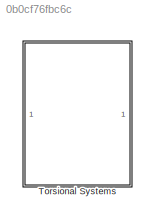
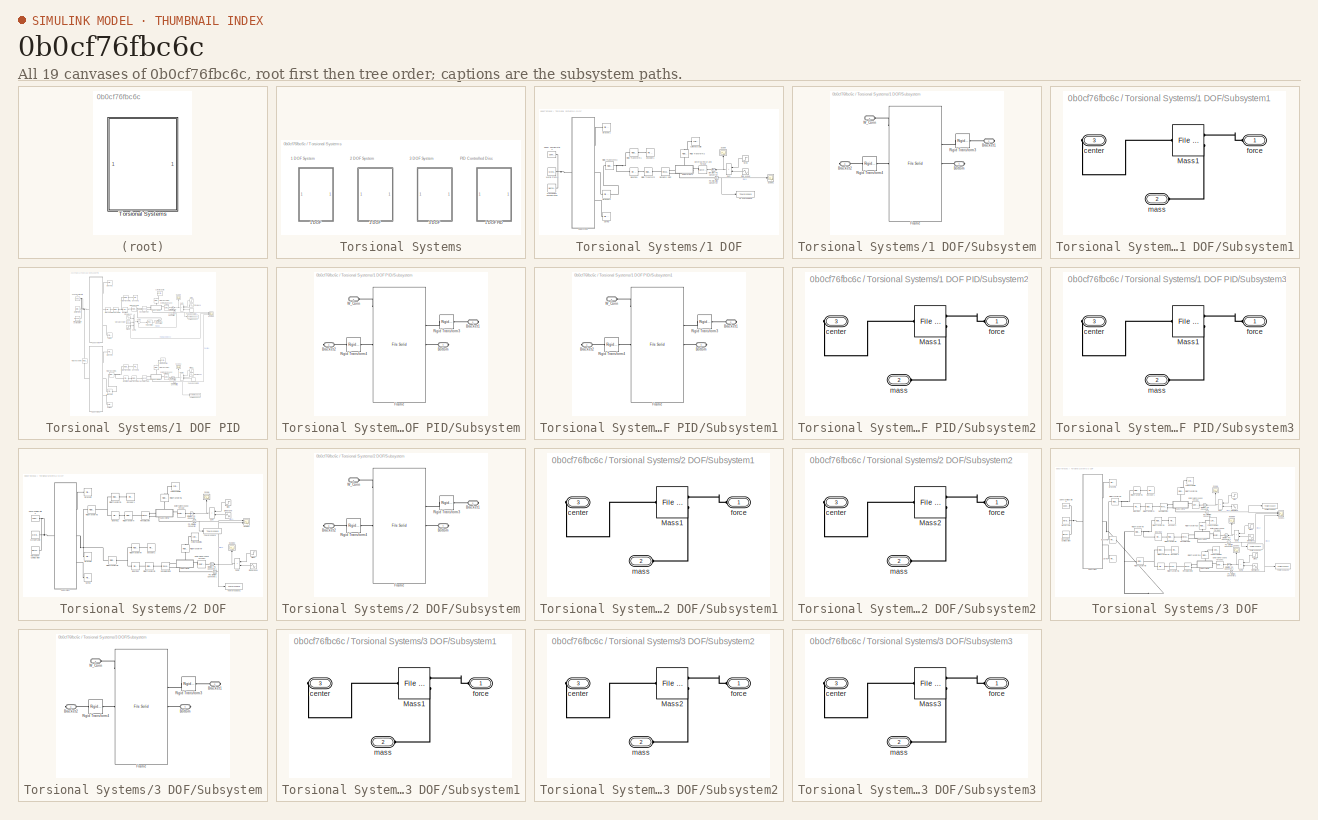
[diagram: thumbnail index - all 19 canvases of the model, root first then tree order]
MODEL slx_0b0cf76fbc6c
KIND model
CONFIG AbsTol = 1e-3
CONFIG EnableMultiTasking = on
CONFIG FixedStep = .001
CONFIG MaxStep = auto
CONFIG MinStep = auto
CONFIG RelTol = 1e-3
CONFIG SampleTimeConstraint = Unconstrained
CONFIG SolverName = daessc
CONFIG StartTime = 0.0
CONFIG StopTime = 10.0
BLOCK [SubSystem] Torsional Systems
  LabelModeActiveChoice = dof1PID
  Ports = []
  RequestExecContextInheritance = off
  Variant = on
  VariantControlMode = label
BLOCK [SubSystem] Torsional Systems/1 DOF
  Ports = []
  RequestExecContextInheritance = off
  VariantControl = dof1
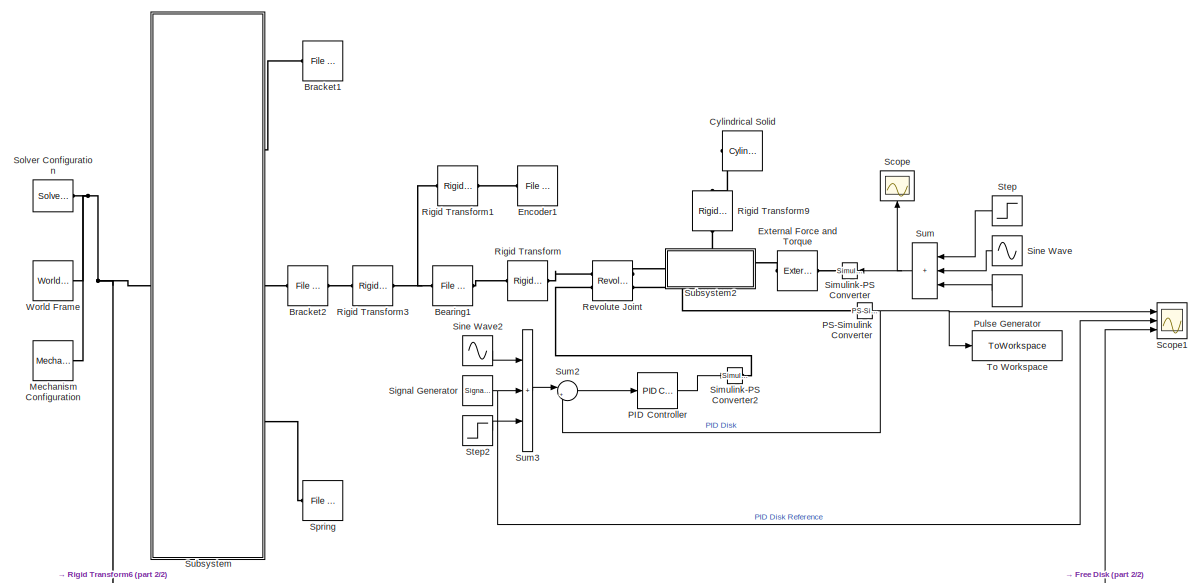
[diagram: Torsional Systems/1 DOF PID - part 1/2, full width, top band]
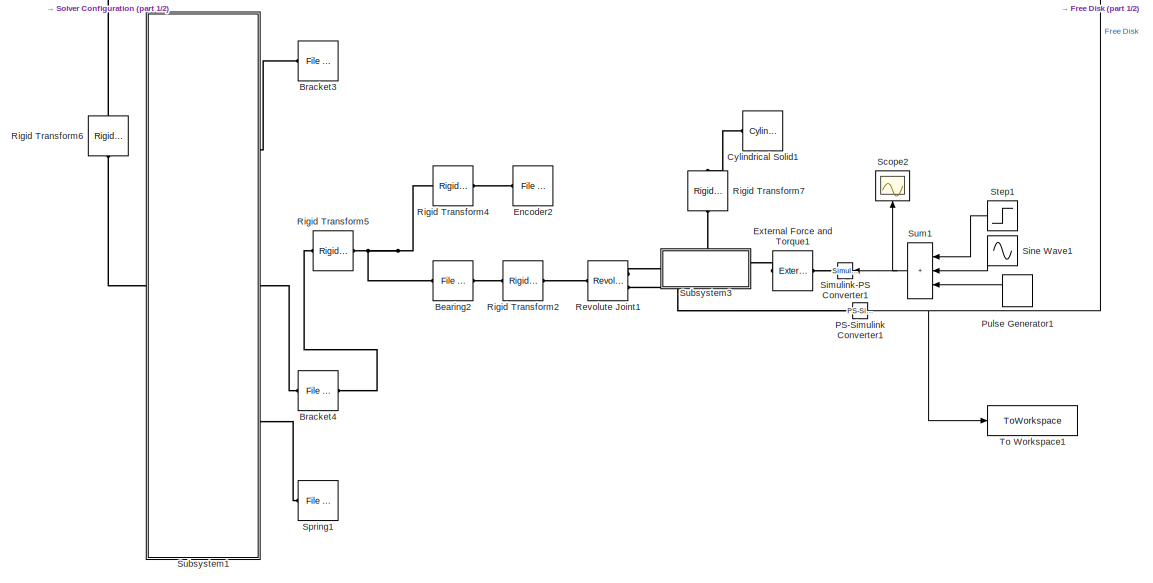
[diagram: Torsional Systems/1 DOF PID - part 2/2, full width, bottom band]
BLOCK [SubSystem] Torsional Systems/1 DOF PID
  Ports = []
  RequestExecContextInheritance = off
  VariantControl = dof1PID
BLOCK [Reference] Torsional Systems/1 DOF PID/Bearing1  REF=sm_lib/Body Elements/File Solid
  Ports = [0, 0, 0, 0, 0, 1, 1]
  SourceBlock = sm_lib/Body Elements/File Solid
  SourceProductBaseCode = MS
  SourceType = File Solid
BLOCK [Reference] Torsional Systems/1 DOF PID/Bearing2  REF=sm_lib/Body Elements/File Solid
  Ports = [0, 0, 0, 0, 0, 1, 1]
  SourceBlock = sm_lib/Body Elements/File Solid
  SourceProductBaseCode = MS
  SourceType = File Solid
BLOCK [Reference] Torsional Systems/1 DOF PID/Bracket1  REF=sm_lib/Body Elements/File Solid
  Ports = [0, 0, 0, 0, 0, 1, 1]
  SourceBlock = sm_lib/Body Elements/File Solid
  SourceProductBaseCode = MS
  SourceType = File Solid
BLOCK [Reference] Torsional Systems/1 DOF PID/Bracket2  REF=sm_lib/Body Elements/File Solid
  Ports = [0, 0, 0, 0, 0, 1, 1]
  SourceBlock = sm_lib/Body Elements/File Solid
  SourceProductBaseCode = MS
  SourceType = File Solid
BLOCK [Reference] Torsional Systems/1 DOF PID/Bracket3  REF=sm_lib/Body Elements/File Solid
  Ports = [0, 0, 0, 0, 0, 1, 1]
  SourceBlock = sm_lib/Body Elements/File Solid
  SourceProductBaseCode = MS
  SourceType = File Solid
BLOCK [Reference] Torsional Systems/1 DOF PID/Bracket4  REF=sm_lib/Body Elements/File Solid
  Ports = [0, 0, 0, 0, 0, 1, 1]
  SourceBlock = sm_lib/Body Elements/File Solid
  SourceProductBaseCode = MS
  SourceType = File Solid
BLOCK [Reference] Torsional Systems/1 DOF PID/Cylindrical Solid  REF=sm_lib/Body Elements/Cylindrical Solid
  Commented = on
  Ports = [0, 0, 0, 0, 0, 1]
  SourceBlock = sm_lib/Body Elements/Cylindrical Solid
  SourceProductBaseCode = MS
  SourceType = Cylindrical Solid
BLOCK [Reference] Torsional Systems/1 DOF PID/Cylindrical Solid1  REF=sm_lib/Body Elements/Cylindrical Solid
  Commented = on
  Ports = [0, 0, 0, 0, 0, 1]
  SourceBlock = sm_lib/Body Elements/Cylindrical Solid
  SourceProductBaseCode = MS
  SourceType = Cylindrical Solid
BLOCK [Reference] Torsional Systems/1 DOF PID/Encoder1  REF=sm_lib/Body Elements/File Solid
  Ports = [0, 0, 0, 0, 0, 1, 1]
  SourceBlock = sm_lib/Body Elements/File Solid
  SourceProductBaseCode = MS
  SourceType = File Solid
BLOCK [Reference] Torsional Systems/1 DOF PID/Encoder2  REF=sm_lib/Body Elements/File Solid
  Ports = [0, 0, 0, 0, 0, 1, 1]
  SourceBlock = sm_lib/Body Elements/File Solid
  SourceProductBaseCode = MS
  SourceType = File Solid
BLOCK [Reference] Torsional Systems/1 DOF PID/External Force and Torque  REF=sm_lib/Forces and
Torques/External Force
and Torque
  NameLocation = top
  Ports = [0, 0, 0, 0, 0, 1, 1]
  SourceBlock = sm_lib/Forces and\nTorques/External Force\nand Torque
  SourceProductBaseCode = MS
  SourceType = External Force\nand Torque
BLOCK [Reference] Torsional Systems/1 DOF PID/External Force and Torque1  REF=sm_lib/Forces and
Torques/External Force
and Torque
  NameLocation = top
  Ports = [0, 0, 0, 0, 0, 1, 1]
  SourceBlock = sm_lib/Forces and\nTorques/External Force\nand Torque
  SourceProductBaseCode = MS
  SourceType = External Force\nand Torque
BLOCK [Reference] Torsional Systems/1 DOF PID/Mechanism Configuration  REF=sm_lib/Utilities/Mechanism
Configuration
  Ports = [0, 0, 0, 0, 0, 0, 1]
  SourceBlock = sm_lib/Utilities/Mechanism\nConfiguration
  SourceProductBaseCode = MS
  SourceType = Mechanism\nConfiguration
BLOCK [Reference] Torsional Systems/1 DOF PID/PID Controller  REF=slpidlib/PID Controller
  Ports = [1, 1]
  SourceBlock = slpidlib/PID Controller
  SourceProductBaseCode = SL
  SourceType = PID 1dof
BLOCK [Reference] Torsional Systems/1 DOF PID/PS-Simulink Converter  REF=nesl_utility/PS-Simulink
Converter
  Ports = [0, 1, 0, 0, 0, 1]
  SourceBlock = nesl_utility/PS-Simulink\nConverter
  SourceProductBaseCode = PW,SS
  SourceType = PS-Simulink\nConverter
BLOCK [Reference] Torsional Systems/1 DOF PID/PS-Simulink Converter1  REF=nesl_utility/PS-Simulink
Converter
  Ports = [0, 1, 0, 0, 0, 1]
  SourceBlock = nesl_utility/PS-Simulink\nConverter
  SourceProductBaseCode = PW,SS
  SourceType = PS-Simulink\nConverter
BLOCK [DiscretePulseGenerator] Torsional Systems/1 DOF PID/Pulse Generator
  Amplitude = Pulse_Force
  NameLocation = top
  Period = Pulse_Period
  Ports = [0, 1]
  PulseType = Time based
  PulseWidth = Pulse_Width
BLOCK [DiscretePulseGenerator] Torsional Systems/1 DOF PID/Pulse Generator1
  Amplitude = Pulse_Force
  NameLocation = top
  Period = Pulse_Period
  Ports = [0, 1]
  PulseType = Time based
  PulseWidth = Pulse_Width
BLOCK [Reference] Torsional Systems/1 DOF PID/Revolute Joint  REF=sm_lib/Joints/Revolute Joint
  Ports = [0, 0, 0, 0, 0, 2, 2]
  SourceBlock = sm_lib/Joints/Revolute Joint
  SourceProductBaseCode = MS
  SourceType = Revolute Joint
BLOCK [Reference] Torsional Systems/1 DOF PID/Revolute Joint1  REF=sm_lib/Joints/Revolute Joint
  Ports = [0, 0, 0, 0, 0, 1, 2]
  SourceBlock = sm_lib/Joints/Revolute Joint
  SourceProductBaseCode = MS
  SourceType = Revolute Joint
BLOCK [Reference] Torsional Systems/1 DOF PID/Rigid Transform  REF=sm_lib/Frames and
Transforms/Rigid
Transform
  Ports = [0, 0, 0, 0, 0, 1, 1]
  SourceBlock = sm_lib/Frames and\nTransforms/Rigid\nTransform
  SourceProductBaseCode = MS
  SourceType = Rigid\nTransform
BLOCK [Reference] Torsional Systems/1 DOF PID/Rigid Transform1  REF=sm_lib/Frames and
Transforms/Rigid
Transform
  Ports = [0, 0, 0, 0, 0, 1, 1]
  SourceBlock = sm_lib/Frames and\nTransforms/Rigid\nTransform
  SourceProductBaseCode = MS
  SourceType = Rigid\nTransform
BLOCK [Reference] Torsional Systems/1 DOF PID/Rigid Transform2  REF=sm_lib/Frames and
Transforms/Rigid
Transform
  Ports = [0, 0, 0, 0, 0, 1, 1]
  SourceBlock = sm_lib/Frames and\nTransforms/Rigid\nTransform
  SourceProductBaseCode = MS
  SourceType = Rigid\nTransform
BLOCK [Reference] Torsional Systems/1 DOF PID/Rigid Transform3  REF=sm_lib/Frames and
Transforms/Rigid
Transform
  Ports = [0, 0, 0, 0, 0, 1, 1]
  SourceBlock = sm_lib/Frames and\nTransforms/Rigid\nTransform
  SourceProductBaseCode = MS
  SourceType = Rigid\nTransform
BLOCK [Reference] Torsional Systems/1 DOF PID/Rigid Transform4  REF=sm_lib/Frames and
Transforms/Rigid
Transform
  Ports = [0, 0, 0, 0, 0, 1, 1]
  SourceBlock = sm_lib/Frames and\nTransforms/Rigid\nTransform
  SourceProductBaseCode = MS
  SourceType = Rigid\nTransform
BLOCK [Reference] Torsional Systems/1 DOF PID/Rigid Transform5  REF=sm_lib/Frames and
Transforms/Rigid
Transform
  Ports = [0, 0, 0, 0, 0, 1, 1]
  SourceBlock = sm_lib/Frames and\nTransforms/Rigid\nTransform
  SourceProductBaseCode = MS
  SourceType = Rigid\nTransform
BLOCK [Reference] Torsional Systems/1 DOF PID/Rigid Transform6  REF=sm_lib/Frames and
Transforms/Rigid
Transform
  NameLocation = left
  Ports = [0, 0, 0, 0, 0, 1, 1]
  SourceBlock = sm_lib/Frames and\nTransforms/Rigid\nTransform
  SourceProductBaseCode = MS
  SourceType = Rigid\nTransform
BLOCK [Reference] Torsional Systems/1 DOF PID/Rigid Transform7  REF=sm_lib/Frames and
Transforms/Rigid
Transform
  Commented = on
  NameLocation = right
  Ports = [0, 0, 0, 0, 0, 1, 1]
  SourceBlock = sm_lib/Frames and\nTransforms/Rigid\nTransform
  SourceProductBaseCode = MS
  SourceType = Rigid\nTransform
BLOCK [Reference] Torsional Systems/1 DOF PID/Rigid Transform9  REF=sm_lib/Frames and
Transforms/Rigid
Transform
  Commented = on
  NameLocation = right
  Ports = [0, 0, 0, 0, 0, 1, 1]
  SourceBlock = sm_lib/Frames and\nTransforms/Rigid\nTransform
  SourceProductBaseCode = MS
  SourceType = Rigid\nTransform
BLOCK [Scope] Torsional Systems/1 DOF PID/Scope
  Floating = off
  NameLocation = right
  NumInputPorts = 1
  Ports = [1]
  ScopeSpecificationString = Simulink.scopes.TimeScopeBlockCfg('CurrentConfiguration', extmgr.ConfigurationSet(extmgr.Configuration('Core','General UI',true),extmgr.Configuration('Core','Source UI',true),extmgr.Configuration('Sources','WiredSimulink',true),extmgr.Configuration('Visuals','Time Domain',true,'SerializedDisplays',{struct('MinYLimReal','-2.49998','MaxYLimReal','2.5','YLabelReal','','MinYLimMag','0.00000','MaxYLimM...<+1406ch>
BLOCK [Scope] Torsional Systems/1 DOF PID/Scope1
  Floating = off
  NumInputPorts = 3
  Ports = [3]
  ScopeSpecificationString = Simulink.scopes.TimeScopeBlockCfg('CurrentConfiguration', extmgr.ConfigurationSet(extmgr.Configuration('Core','General UI',true),extmgr.Configuration('Core','Source UI',true),extmgr.Configuration('Sources','WiredSimulink',true,'DataLoggingVariableName','ScopeData1'),extmgr.Configuration('Visuals','Time Domain',true,'SerializedDisplays',{struct('MinYLimReal','-82.74556','MaxYLimReal','98.73518','YL...<+1503ch>
BLOCK [Scope] Torsional Systems/1 DOF PID/Scope2
  Floating = off
  NameLocation = right
  NumInputPorts = 1
  Ports = [1]
  ScopeSpecificationString = Simulink.scopes.TimeScopeBlockCfg('CurrentConfiguration', extmgr.ConfigurationSet(extmgr.Configuration('Core','General UI',true),extmgr.Configuration('Core','Source UI',true),extmgr.Configuration('Sources','WiredSimulink',true,'DataLoggingVariableName','ScopeData1'),extmgr.Configuration('Visuals','Time Domain',true,'SerializedDisplays',{struct('MinYLimReal','-12.5','MaxYLimReal','112.5','YLabelRea...<+1393ch>
BLOCK [SignalGenerator] Torsional Systems/1 DOF PID/Signal Generator
  Amplitude = squ_amp
  Frequency = squ_freq
  Ports = [0, 1]
  WaveForm = square
BLOCK [Reference] Torsional Systems/1 DOF PID/Simulink-PS Converter  REF=nesl_utility/Simulink-PS
Converter
  NameLocation = top
  Ports = [1, 0, 0, 0, 0, 0, 1]
  SourceBlock = nesl_utility/Simulink-PS\nConverter
  SourceProductBaseCode = PW,SS
  SourceType = Simulink-PS\nConverter
BLOCK [Reference] Torsional Systems/1 DOF PID/Simulink-PS Converter1  REF=nesl_utility/Simulink-PS
Converter
  NameLocation = top
  Ports = [1, 0, 0, 0, 0, 0, 1]
  SourceBlock = nesl_utility/Simulink-PS\nConverter
  SourceProductBaseCode = PW,SS
  SourceType = Simulink-PS\nConverter
BLOCK [Reference] Torsional Systems/1 DOF PID/Simulink-PS Converter2  REF=nesl_utility/Simulink-PS
Converter
  Ports = [1, 0, 0, 0, 0, 0, 1]
  SourceBlock = nesl_utility/Simulink-PS\nConverter
  SourceProductBaseCode = PW,SS
  SourceType = Simulink-PS\nConverter
BLOCK [Sin] Torsional Systems/1 DOF PID/Sine Wave
  Amplitude = Har_Force
  Frequency = freq
  NameLocation = top
  Ports = [0, 1]
  SampleTime = 0
BLOCK [Sin] Torsional Systems/1 DOF PID/Sine Wave1
  Amplitude = Har_Force
  Frequency = freq
  NameLocation = top
  Ports = [0, 1]
  SampleTime = 0
BLOCK [Sin] Torsional Systems/1 DOF PID/Sine Wave2
  Amplitude = sin_amp
  Commented = on
  Frequency = sin_freq
  Ports = [0, 1]
  SampleTime = 0
BLOCK [Reference] Torsional Systems/1 DOF PID/Solver Configuration  REF=nesl_utility/Solver
Configuration
  Ports = [0, 0, 0, 0, 0, 0, 1]
  SourceBlock = nesl_utility/Solver\nConfiguration
  SourceProductBaseCode = PW,SS
  SourceType = Solver\nConfiguration
BLOCK [Reference] Torsional Systems/1 DOF PID/Spring  REF=sm_lib/Body Elements/File Solid
  Ports = [0, 0, 0, 0, 0, 1]
  SourceBlock = sm_lib/Body Elements/File Solid
  SourceProductBaseCode = MS
  SourceType = File Solid
BLOCK [Reference] Torsional Systems/1 DOF PID/Spring1  REF=sm_lib/Body Elements/File Solid
  Ports = [0, 0, 0, 0, 0, 1]
  SourceBlock = sm_lib/Body Elements/File Solid
  SourceProductBaseCode = MS
  SourceType = File Solid
BLOCK [Step] Torsional Systems/1 DOF PID/Step
  After = 0
  Before = Force
  NameLocation = top
  SampleTime = 0
  Time = .1
BLOCK [Step] Torsional Systems/1 DOF PID/Step1
  After = 0
  Before = Force
  NameLocation = top
  SampleTime = 0
  Time = .1
BLOCK [Step] Torsional Systems/1 DOF PID/Step2
  After = step_mag
  Before = step_mag
  Commented = on
  SampleTime = 0
  Time = 0
BLOCK [SubSystem] Torsional Systems/1 DOF PID/Subsystem
  Ports = [0, 0, 0, 0, 0, 1, 3]
  RequestExecContextInheritance = off
BLOCK [PMIOPort] Torsional Systems/1 DOF PID/Subsystem/Bottom
  Port = 4
  Side = Right
BLOCK [PMIOPort] Torsional Systems/1 DOF PID/Subsystem/Bracket1
  Port = 2
  Side = Right
BLOCK [PMIOPort] Torsional Systems/1 DOF PID/Subsystem/Bracket2
  NameLocation = top
  Port = 3
  Side = Right
BLOCK [Reference] Torsional Systems/1 DOF PID/Subsystem/Frame  REF=sm_lib/Body Elements/File Solid
  Ports = [0, 0, 0, 0, 0, 5, 5]
  SourceBlock = sm_lib/Body Elements/File Solid
  SourceProductBaseCode = MS
  SourceType = File Solid
BLOCK [Reference] Torsional Systems/1 DOF PID/Subsystem/Rigid Transform3  REF=sm_lib/Frames and
Transforms/Rigid
Transform
  Ports = [0, 0, 0, 0, 0, 1, 1]
  SourceBlock = sm_lib/Frames and\nTransforms/Rigid\nTransform
  SourceProductBaseCode = MS
  SourceType = Rigid\nTransform
BLOCK [Reference] Torsional Systems/1 DOF PID/Subsystem/Rigid Transform4  REF=sm_lib/Frames and
Transforms/Rigid
Transform
  NameLocation = top
  Ports = [0, 0, 0, 0, 0, 1, 1]
  SourceBlock = sm_lib/Frames and\nTransforms/Rigid\nTransform
  SourceProductBaseCode = MS
  SourceType = Rigid\nTransform
BLOCK [PMIOPort] Torsional Systems/1 DOF PID/Subsystem/W_Conn
  Side = Left
BLOCK [SubSystem] Torsional Systems/1 DOF PID/Subsystem1
  Ports = [0, 0, 0, 0, 0, 1, 3]
  RequestExecContextInheritance = off
BLOCK [PMIOPort] Torsional Systems/1 DOF PID/Subsystem1/Bottom
  Port = 4
  Side = Right
BLOCK [PMIOPort] Torsional Systems/1 DOF PID/Subsystem1/Bracket1
  Port = 2
  Side = Right
BLOCK [PMIOPort] Torsional Systems/1 DOF PID/Subsystem1/Bracket2
  NameLocation = top
  Port = 3
  Side = Right
BLOCK [Reference] Torsional Systems/1 DOF PID/Subsystem1/Frame  REF=sm_lib/Body Elements/File Solid
  Ports = [0, 0, 0, 0, 0, 5, 5]
  SourceBlock = sm_lib/Body Elements/File Solid
  SourceProductBaseCode = MS
  SourceType = File Solid
BLOCK [Reference] Torsional Systems/1 DOF PID/Subsystem1/Rigid Transform3  REF=sm_lib/Frames and
Transforms/Rigid
Transform
  Ports = [0, 0, 0, 0, 0, 1, 1]
  SourceBlock = sm_lib/Frames and\nTransforms/Rigid\nTransform
  SourceProductBaseCode = MS
  SourceType = Rigid\nTransform
BLOCK [Reference] Torsional Systems/1 DOF PID/Subsystem1/Rigid Transform4  REF=sm_lib/Frames and
Transforms/Rigid
Transform
  NameLocation = top
  Ports = [0, 0, 0, 0, 0, 1, 1]
  SourceBlock = sm_lib/Frames and\nTransforms/Rigid\nTransform
  SourceProductBaseCode = MS
  SourceType = Rigid\nTransform
BLOCK [PMIOPort] Torsional Systems/1 DOF PID/Subsystem1/W_Conn
  Side = Left
BLOCK [SubSystem] Torsional Systems/1 DOF PID/Subsystem2
  PortSchema = {"entries":[{"content":{"sides":[{"content":{"connectorIds":["LConn1"]},"type":"ConnectorPlacement.EquallySpacedRectSide","uuid":"d68d92a3-376a-4baf-a7a9-f6ce211c7a0e"},{"content":{"connectorIds":["RConn1"],"side":"RIGHT"},"type":"ConnectorPlacement.EquallySpacedRectSide","uuid":"ed7c6dd7-0ec9-44a8-a8c4-0583e8e4929e"},{"content":{"connectorIds":["LConn2"],"side":"TOP"},"type":"ConnectorPlacement.E...<+253ch>  <repeated x8 — deduplicated; at blocks: Subsystem2, Subsystem3, Subsystem1>
  Ports = [0, 0, 0, 0, 0, 2, 1]
  RequestExecContextInheritance = off
BLOCK [Reference] Torsional Systems/1 DOF PID/Subsystem2/Mass1  REF=sm_lib/Body Elements/File Solid
  NameLocation = top
  Ports = [0, 0, 0, 0, 0, 2, 1]
  SourceBlock = sm_lib/Body Elements/File Solid
  SourceProductBaseCode = MS
  SourceType = File Solid
BLOCK [PMIOPort] Torsional Systems/1 DOF PID/Subsystem2/center
  Port = 3
  Side = Right
BLOCK [PMIOPort] Torsional Systems/1 DOF PID/Subsystem2/force
  Side = Left
BLOCK [PMIOPort] Torsional Systems/1 DOF PID/Subsystem2/mass
  Port = 2
  Side = Left
BLOCK [SubSystem] Torsional Systems/1 DOF PID/Subsystem3
  Ports = [0, 0, 0, 0, 0, 2, 1]
  RequestExecContextInheritance = off
BLOCK [Reference] Torsional Systems/1 DOF PID/Subsystem3/Mass1  REF=sm_lib/Body Elements/File Solid
  NameLocation = top
  Ports = [0, 0, 0, 0, 0, 2, 1]
  SourceBlock = sm_lib/Body Elements/File Solid
  SourceProductBaseCode = MS
  SourceType = File Solid
BLOCK [PMIOPort] Torsional Systems/1 DOF PID/Subsystem3/center
  Port = 3
  Side = Right
BLOCK [PMIOPort] Torsional Systems/1 DOF PID/Subsystem3/force
  Side = Left
BLOCK [PMIOPort] Torsional Systems/1 DOF PID/Subsystem3/mass
  Port = 2
  Side = Left
BLOCK [Sum] Torsional Systems/1 DOF PID/Sum
  IconShape = rectangular
  Inputs = +++
  NameLocation = top
  Ports = [3, 1]
BLOCK [Sum] Torsional Systems/1 DOF PID/Sum1
  IconShape = rectangular
  Inputs = +++
  NameLocation = top
  Ports = [3, 1]
BLOCK [Sum] Torsional Systems/1 DOF PID/Sum2
  Inputs = |+-
  Ports = [2, 1]
BLOCK [Sum] Torsional Systems/1 DOF PID/Sum3
  IconShape = rectangular
  Inputs = +++
  Ports = [3, 1]
BLOCK [ToWorkspace] Torsional Systems/1 DOF PID/To Workspace
  FixptAsFi = on
  MaxDataPoints = inf
  Ports = [1]
  SampleTime = -1
  VariableName = PID_disc_pos
BLOCK [ToWorkspace] Torsional Systems/1 DOF PID/To Workspace1
  FixptAsFi = on
  MaxDataPoints = inf
  Ports = [1]
  SampleTime = -1
  VariableName = free_disc_pos
BLOCK [Reference] Torsional Systems/1 DOF PID/World Frame  REF=sm_lib/Frames and
Transforms/World Frame
  Ports = [0, 0, 0, 0, 0, 0, 1]
  SourceBlock = sm_lib/Frames and\nTransforms/World Frame
  SourceProductBaseCode = MS
  SourceType = World Frame
BLOCK [Reference] Torsional Systems/1 DOF/Bearing1  REF=sm_lib/Body Elements/File Solid
  Ports = [0, 0, 0, 0, 0, 1, 1]
  SourceBlock = sm_lib/Body Elements/File Solid
  SourceProductBaseCode = MS
  SourceType = File Solid
BLOCK [Reference] Torsional Systems/1 DOF/Bracket1  REF=sm_lib/Body Elements/File Solid
  Ports = [0, 0, 0, 0, 0, 1, 1]
  SourceBlock = sm_lib/Body Elements/File Solid
  SourceProductBaseCode = MS
  SourceType = File Solid
BLOCK [Reference] Torsional Systems/1 DOF/Bracket2  REF=sm_lib/Body Elements/File Solid
  Ports = [0, 0, 0, 0, 0, 1, 1]
  SourceBlock = sm_lib/Body Elements/File Solid
  SourceProductBaseCode = MS
  SourceType = File Solid
BLOCK [Reference] Torsional Systems/1 DOF/Cylindrical Solid  REF=sm_lib/Body Elements/Cylindrical Solid
  Commented = on
  Ports = [0, 0, 0, 0, 0, 1]
  SourceBlock = sm_lib/Body Elements/Cylindrical Solid
  SourceProductBaseCode = MS
  SourceType = Cylindrical Solid
BLOCK [Reference] Torsional Systems/1 DOF/Encoder1  REF=sm_lib/Body Elements/File Solid
  Ports = [0, 0, 0, 0, 0, 1, 1]
  SourceBlock = sm_lib/Body Elements/File Solid
  SourceProductBaseCode = MS
  SourceType = File Solid
BLOCK [Reference] Torsional Systems/1 DOF/External Force and Torque  REF=sm_lib/Forces and
Torques/External Force
and Torque
  NameLocation = top
  Ports = [0, 0, 0, 0, 0, 1, 1]
  SourceBlock = sm_lib/Forces and\nTorques/External Force\nand Torque
  SourceProductBaseCode = MS
  SourceType = External Force\nand Torque
BLOCK [Reference] Torsional Systems/1 DOF/Mechanism Configuration  REF=sm_lib/Utilities/Mechanism
Configuration
  Ports = [0, 0, 0, 0, 0, 0, 1]
  SourceBlock = sm_lib/Utilities/Mechanism\nConfiguration
  SourceProductBaseCode = MS
  SourceType = Mechanism\nConfiguration
BLOCK [Reference] Torsional Systems/1 DOF/PS-Simulink Converter  REF=nesl_utility/PS-Simulink
Converter
  Ports = [0, 1, 0, 0, 0, 1]
  SourceBlock = nesl_utility/PS-Simulink\nConverter
  SourceProductBaseCode = PW,SS
  SourceType = PS-Simulink\nConverter
BLOCK [Reference] Torsional Systems/1 DOF/Revolute Joint  REF=sm_lib/Joints/Revolute Joint
  Ports = [0, 0, 0, 0, 0, 1, 2]
  SourceBlock = sm_lib/Joints/Revolute Joint
  SourceProductBaseCode = MS
  SourceType = Revolute Joint
BLOCK [Reference] Torsional Systems/1 DOF/Rigid Transform  REF=sm_lib/Frames and
Transforms/Rigid
Transform
  Ports = [0, 0, 0, 0, 0, 1, 1]
  SourceBlock = sm_lib/Frames and\nTransforms/Rigid\nTransform
  SourceProductBaseCode = MS
  SourceType = Rigid\nTransform
BLOCK [Reference] Torsional Systems/1 DOF/Rigid Transform1  REF=sm_lib/Frames and
Transforms/Rigid
Transform
  Ports = [0, 0, 0, 0, 0, 1, 1]
  SourceBlock = sm_lib/Frames and\nTransforms/Rigid\nTransform
  SourceProductBaseCode = MS
  SourceType = Rigid\nTransform
BLOCK [Reference] Torsional Systems/1 DOF/Rigid Transform2  REF=sm_lib/Frames and
Transforms/Rigid
Transform
  Commented = on
  NameLocation = right
  Ports = [0, 0, 0, 0, 0, 1, 1]
  SourceBlock = sm_lib/Frames and\nTransforms/Rigid\nTransform
  SourceProductBaseCode = MS
  SourceType = Rigid\nTransform
BLOCK [Reference] Torsional Systems/1 DOF/Rigid Transform3  REF=sm_lib/Frames and
Transforms/Rigid
Transform
  Ports = [0, 0, 0, 0, 0, 1, 1]
  SourceBlock = sm_lib/Frames and\nTransforms/Rigid\nTransform
  SourceProductBaseCode = MS
  SourceType = Rigid\nTransform
BLOCK [Scope] Torsional Systems/1 DOF/Scope
  Floating = off
  NameLocation = right
  NumInputPorts = 1
  Ports = [1]
  ScopeSpecificationString = Simulink.scopes.TimeScopeBlockCfg('CurrentConfiguration', extmgr.ConfigurationSet(extmgr.Configuration('Core','General UI',true),extmgr.Configuration('Core','Source UI',true),extmgr.Configuration('Sources','WiredSimulink',true),extmgr.Configuration('Visuals','Time Domain',true,'SerializedDisplays',{struct('MinYLimReal','-2.49727','MaxYLimReal','2.4996','YLabelReal','','MinYLimMag','0.00000','MaxYL...<+1363ch>
BLOCK [Scope] Torsional Systems/1 DOF/Scope1
  Floating = off
  NumInputPorts = 1
  Ports = [1]
  ScopeSpecificationString = Simulink.scopes.TimeScopeBlockCfg('CurrentConfiguration', extmgr.ConfigurationSet(extmgr.Configuration('Core','General UI',true),extmgr.Configuration('Core','Source UI',true),extmgr.Configuration('Sources','WiredSimulink',true,'DataLoggingVariableName','ScopeData1'),extmgr.Configuration('Visuals','Time Domain',true,'SerializedDisplays',{struct('MinYLimReal','-58.52602','MaxYLimReal','62.05845','YL...<+1444ch>
BLOCK [Reference] Torsional Systems/1 DOF/Simulink-PS Converter  REF=nesl_utility/Simulink-PS
Converter
  NameLocation = top
  Ports = [1, 0, 0, 0, 0, 0, 1]
  SourceBlock = nesl_utility/Simulink-PS\nConverter
  SourceProductBaseCode = PW,SS
  SourceType = Simulink-PS\nConverter
BLOCK [Sin] Torsional Systems/1 DOF/Sine Wave
  Amplitude = Har_Force
  Frequency = freq
  NameLocation = top
  Ports = [0, 1]
  SampleTime = 0
BLOCK [Reference] Torsional Systems/1 DOF/Solver Configuration  REF=nesl_utility/Solver
Configuration
  Ports = [0, 0, 0, 0, 0, 0, 1]
  SourceBlock = nesl_utility/Solver\nConfiguration
  SourceProductBaseCode = PW,SS
  SourceType = Solver\nConfiguration
BLOCK [Reference] Torsional Systems/1 DOF/Spring  REF=sm_lib/Body Elements/File Solid
  Ports = [0, 0, 0, 0, 0, 1]
  SourceBlock = sm_lib/Body Elements/File Solid
  SourceProductBaseCode = MS
  SourceType = File Solid
BLOCK [Step] Torsional Systems/1 DOF/Step
  After = 0
  Before = Force
  NameLocation = top
  SampleTime = 0
  Time = .1
BLOCK [SubSystem] Torsional Systems/1 DOF/Subsystem
  Ports = [0, 0, 0, 0, 0, 1, 3]
  RequestExecContextInheritance = off
BLOCK [PMIOPort] Torsional Systems/1 DOF/Subsystem/Bottom
  Port = 4
  Side = Right
BLOCK [PMIOPort] Torsional Systems/1 DOF/Subsystem/Bracket1
  Port = 2
  Side = Right
BLOCK [PMIOPort] Torsional Systems/1 DOF/Subsystem/Bracket2
  NameLocation = top
  Port = 3
  Side = Right
BLOCK [Reference] Torsional Systems/1 DOF/Subsystem/Frame  REF=sm_lib/Body Elements/File Solid
  Ports = [0, 0, 0, 0, 0, 5, 5]
  SourceBlock = sm_lib/Body Elements/File Solid
  SourceProductBaseCode = MS
  SourceType = File Solid
BLOCK [Reference] Torsional Systems/1 DOF/Subsystem/Rigid Transform3  REF=sm_lib/Frames and
Transforms/Rigid
Transform
  Ports = [0, 0, 0, 0, 0, 1, 1]
  SourceBlock = sm_lib/Frames and\nTransforms/Rigid\nTransform
  SourceProductBaseCode = MS
  SourceType = Rigid\nTransform
BLOCK [Reference] Torsional Systems/1 DOF/Subsystem/Rigid Transform4  REF=sm_lib/Frames and
Transforms/Rigid
Transform
  NameLocation = top
  Ports = [0, 0, 0, 0, 0, 1, 1]
  SourceBlock = sm_lib/Frames and\nTransforms/Rigid\nTransform
  SourceProductBaseCode = MS
  SourceType = Rigid\nTransform
BLOCK [PMIOPort] Torsional Systems/1 DOF/Subsystem/W_Conn
  Side = Left
BLOCK [SubSystem] Torsional Systems/1 DOF/Subsystem1
  Ports = [0, 0, 0, 0, 0, 2, 1]
  RequestExecContextInheritance = off
BLOCK [Reference] Torsional Systems/1 DOF/Subsystem1/Mass1  REF=sm_lib/Body Elements/File Solid
  NameLocation = top
  Ports = [0, 0, 0, 0, 0, 2, 1]
  SourceBlock = sm_lib/Body Elements/File Solid
  SourceProductBaseCode = MS
  SourceType = File Solid
BLOCK [PMIOPort] Torsional Systems/1 DOF/Subsystem1/center
  Port = 3
  Side = Right
BLOCK [PMIOPort] Torsional Systems/1 DOF/Subsystem1/force
  Side = Left
BLOCK [PMIOPort] Torsional Systems/1 DOF/Subsystem1/mass
  Port = 2
  Side = Left
BLOCK [Sum] Torsional Systems/1 DOF/Sum
  IconShape = rectangular
  NameLocation = top
  Ports = [2, 1]
BLOCK [ToWorkspace] Torsional Systems/1 DOF/To Workspace
  FixptAsFi = on
  MaxDataPoints = inf
  Ports = [1]
  SampleTime = -1
  VariableName = disc1_pos
BLOCK [Reference] Torsional Systems/1 DOF/World Frame  REF=sm_lib/Frames and
Transforms/World Frame
  Ports = [0, 0, 0, 0, 0, 0, 1]
  SourceBlock = sm_lib/Frames and\nTransforms/World Frame
  SourceProductBaseCode = MS
  SourceType = World Frame
BLOCK [SubSystem] Torsional Systems/2 DOF
  Ports = []
  RequestExecContextInheritance = off
  VariantControl = dof2
BLOCK [Reference] Torsional Systems/2 DOF/Bearing1  REF=sm_lib/Body Elements/File Solid
  Ports = [0, 0, 0, 0, 0, 1, 1]
  SourceBlock = sm_lib/Body Elements/File Solid
  SourceProductBaseCode = MS
  SourceType = File Solid
BLOCK [Reference] Torsional Systems/2 DOF/Bearing2  REF=sm_lib/Body Elements/File Solid
  Ports = [0, 0, 0, 0, 0, 1, 1]
  SourceBlock = sm_lib/Body Elements/File Solid
  SourceProductBaseCode = MS
  SourceType = File Solid
BLOCK [Reference] Torsional Systems/2 DOF/Bracket1  REF=sm_lib/Body Elements/File Solid
  Ports = [0, 0, 0, 0, 0, 1, 1]
  SourceBlock = sm_lib/Body Elements/File Solid
  SourceProductBaseCode = MS
  SourceType = File Solid
BLOCK [Reference] Torsional Systems/2 DOF/Bracket2  REF=sm_lib/Body Elements/File Solid
  Ports = [0, 0, 0, 0, 0, 1, 1]
  SourceBlock = sm_lib/Body Elements/File Solid
  SourceProductBaseCode = MS
  SourceType = File Solid
BLOCK [Reference] Torsional Systems/2 DOF/Cylindrical Solid  REF=sm_lib/Body Elements/Cylindrical Solid
  Commented = on
  Ports = [0, 0, 0, 0, 0, 1]
  SourceBlock = sm_lib/Body Elements/Cylindrical Solid
  SourceProductBaseCode = MS
  SourceType = Cylindrical Solid
BLOCK [Reference] Torsional Systems/2 DOF/Cylindrical Solid1  REF=sm_lib/Body Elements/Cylindrical Solid
  Commented = on
  Ports = [0, 0, 0, 0, 0, 1]
  SourceBlock = sm_lib/Body Elements/Cylindrical Solid
  SourceProductBaseCode = MS
  SourceType = Cylindrical Solid
BLOCK [Reference] Torsional Systems/2 DOF/Encoder1  REF=sm_lib/Body Elements/File Solid
  Ports = [0, 0, 0, 0, 0, 1, 1]
  SourceBlock = sm_lib/Body Elements/File Solid
  SourceProductBaseCode = MS
  SourceType = File Solid
BLOCK [Reference] Torsional Systems/2 DOF/Encoder2  REF=sm_lib/Body Elements/File Solid
  Ports = [0, 0, 0, 0, 0, 1, 1]
  SourceBlock = sm_lib/Body Elements/File Solid
  SourceProductBaseCode = MS
  SourceType = File Solid
BLOCK [Reference] Torsional Systems/2 DOF/External Force and Torque  REF=sm_lib/Forces and
Torques/External Force
and Torque
  NameLocation = top
  Ports = [0, 0, 0, 0, 0, 1, 1]
  SourceBlock = sm_lib/Forces and\nTorques/External Force\nand Torque
  SourceProductBaseCode = MS
  SourceType = External Force\nand Torque
BLOCK [Reference] Torsional Systems/2 DOF/External Force and Torque1  REF=sm_lib/Forces and
Torques/External Force
and Torque
  NameLocation = top
  Ports = [0, 0, 0, 0, 0, 1, 1]
  SourceBlock = sm_lib/Forces and\nTorques/External Force\nand Torque
  SourceProductBaseCode = MS
  SourceType = External Force\nand Torque
BLOCK [Reference] Torsional Systems/2 DOF/Mechanism Configuration  REF=sm_lib/Utilities/Mechanism
Configuration
  Ports = [0, 0, 0, 0, 0, 0, 1]
  SourceBlock = sm_lib/Utilities/Mechanism\nConfiguration
  SourceProductBaseCode = MS
  SourceType = Mechanism\nConfiguration
BLOCK [Reference] Torsional Systems/2 DOF/PS-Simulink Converter  REF=nesl_utility/PS-Simulink
Converter
  Ports = [0, 1, 0, 0, 0, 1]
  SourceBlock = nesl_utility/PS-Simulink\nConverter
  SourceProductBaseCode = PW,SS
  SourceType = PS-Simulink\nConverter
BLOCK [Reference] Torsional Systems/2 DOF/PS-Simulink Converter1  REF=nesl_utility/PS-Simulink
Converter
  Ports = [0, 1, 0, 0, 0, 1]
  SourceBlock = nesl_utility/PS-Simulink\nConverter
  SourceProductBaseCode = PW,SS
  SourceType = PS-Simulink\nConverter
BLOCK [Reference] Torsional Systems/2 DOF/Revolute Joint  REF=sm_lib/Joints/Revolute Joint
  Ports = [0, 0, 0, 0, 0, 1, 2]
  SourceBlock = sm_lib/Joints/Revolute Joint
  SourceProductBaseCode = MS
  SourceType = Revolute Joint
BLOCK [Reference] Torsional Systems/2 DOF/Revolute Joint1  REF=sm_lib/Joints/Revolute Joint
  Ports = [0, 0, 0, 0, 0, 1, 2]
  SourceBlock = sm_lib/Joints/Revolute Joint
  SourceProductBaseCode = MS
  SourceType = Revolute Joint
BLOCK [Reference] Torsional Systems/2 DOF/Rigid Transform  REF=sm_lib/Frames and
Transforms/Rigid
Transform
  Ports = [0, 0, 0, 0, 0, 1, 1]
  SourceBlock = sm_lib/Frames and\nTransforms/Rigid\nTransform
  SourceProductBaseCode = MS
  SourceType = Rigid\nTransform
BLOCK [Reference] Torsional Systems/2 DOF/Rigid Transform1  REF=sm_lib/Frames and
Transforms/Rigid
Transform
  Ports = [0, 0, 0, 0, 0, 1, 1]
  SourceBlock = sm_lib/Frames and\nTransforms/Rigid\nTransform
  SourceProductBaseCode = MS
  SourceType = Rigid\nTransform
BLOCK [Reference] Torsional Systems/2 DOF/Rigid Transform2  REF=sm_lib/Frames and
Transforms/Rigid
Transform
  Ports = [0, 0, 0, 0, 0, 1, 1]
  SourceBlock = sm_lib/Frames and\nTransforms/Rigid\nTransform
  SourceProductBaseCode = MS
  SourceType = Rigid\nTransform
BLOCK [Reference] Torsional Systems/2 DOF/Rigid Transform3  REF=sm_lib/Frames and
Transforms/Rigid
Transform
  Ports = [0, 0, 0, 0, 0, 1, 1]
  SourceBlock = sm_lib/Frames and\nTransforms/Rigid\nTransform
  SourceProductBaseCode = MS
  SourceType = Rigid\nTransform
BLOCK [Reference] Torsional Systems/2 DOF/Rigid Transform4  REF=sm_lib/Frames and
Transforms/Rigid
Transform
  Ports = [0, 0, 0, 0, 0, 1, 1]
  SourceBlock = sm_lib/Frames and\nTransforms/Rigid\nTransform
  SourceProductBaseCode = MS
  SourceType = Rigid\nTransform
BLOCK [Reference] Torsional Systems/2 DOF/Rigid Transform5  REF=sm_lib/Frames and
Transforms/Rigid
Transform
  Ports = [0, 0, 0, 0, 0, 1, 1]
  SourceBlock = sm_lib/Frames and\nTransforms/Rigid\nTransform
  SourceProductBaseCode = MS
  SourceType = Rigid\nTransform
BLOCK [Reference] Torsional Systems/2 DOF/Rigid Transform6  REF=sm_lib/Frames and
Transforms/Rigid
Transform
  Commented = on
  NameLocation = right
  Ports = [0, 0, 0, 0, 0, 1, 1]
  SourceBlock = sm_lib/Frames and\nTransforms/Rigid\nTransform
  SourceProductBaseCode = MS
  SourceType = Rigid\nTransform
BLOCK [Reference] Torsional Systems/2 DOF/Rigid Transform7  REF=sm_lib/Frames and
Transforms/Rigid
Transform
  Commented = on
  NameLocation = right
  Ports = [0, 0, 0, 0, 0, 1, 1]
  SourceBlock = sm_lib/Frames and\nTransforms/Rigid\nTransform
  SourceProductBaseCode = MS
  SourceType = Rigid\nTransform
BLOCK [Scope] Torsional Systems/2 DOF/Scope
  Floating = off
  NameLocation = right
  NumInputPorts = 1
  Ports = [1]
  ScopeSpecificationString = Simulink.scopes.TimeScopeBlockCfg('CurrentConfiguration', extmgr.ConfigurationSet(extmgr.Configuration('Core','General UI',true),extmgr.Configuration('Core','Source UI',true),extmgr.Configuration('Sources','WiredSimulink',true,'DataLoggingVariableName','ScopeData1'),extmgr.Configuration('Visuals','Time Domain',true,'SerializedDisplays',{struct('MinYLimReal','-0.0719','MaxYLimReal','1.02832','YLabe...<+1405ch>
BLOCK [Scope] Torsional Systems/2 DOF/Scope1
  Floating = off
  NumInputPorts = 2
  Ports = [2]
  ScopeSpecificationString = Simulink.scopes.TimeScopeBlockCfg('CurrentConfiguration', extmgr.ConfigurationSet(extmgr.Configuration('Core','General UI',true),extmgr.Configuration('Core','Source UI',true),extmgr.Configuration('Sources','WiredSimulink',true,'DataLoggingVariableName','ScopeData1'),extmgr.Configuration('Visuals','Time Domain',true,'SerializedDisplays',{struct('MinYLimReal','-35.8934','MaxYLimReal','37.32149','YLa...<+1420ch>
BLOCK [Scope] Torsional Systems/2 DOF/Scope2
  Floating = off
  NameLocation = right
  NumInputPorts = 1
  Ports = [1]
  ScopeSpecificationString = Simulink.scopes.TimeScopeBlockCfg('CurrentConfiguration', extmgr.ConfigurationSet(extmgr.Configuration('Core','General UI',true),extmgr.Configuration('Core','Source UI',true),extmgr.Configuration('Sources','WiredSimulink',true,'DataLoggingVariableName','ScopeData2'),extmgr.Configuration('Visuals','Time Domain',true,'SerializedDisplays',{struct('MinYLimReal','-0.0719','MaxYLimReal','1.02832','YLabe...<+1405ch>
BLOCK [Reference] Torsional Systems/2 DOF/Simulink-PS Converter  REF=nesl_utility/Simulink-PS
Converter
  NameLocation = top
  Ports = [1, 0, 0, 0, 0, 0, 1]
  SourceBlock = nesl_utility/Simulink-PS\nConverter
  SourceProductBaseCode = PW,SS
  SourceType = Simulink-PS\nConverter
BLOCK [Reference] Torsional Systems/2 DOF/Simulink-PS Converter1  REF=nesl_utility/Simulink-PS
Converter
  NameLocation = top
  Ports = [1, 0, 0, 0, 0, 0, 1]
  SourceBlock = nesl_utility/Simulink-PS\nConverter
  SourceProductBaseCode = PW,SS
  SourceType = Simulink-PS\nConverter
BLOCK [Sin] Torsional Systems/2 DOF/Sine Wave
  Amplitude = Har_Force_m1
  Frequency = freq_m1
  NameLocation = top
  Ports = [0, 1]
  SampleTime = 0
BLOCK [Sin] Torsional Systems/2 DOF/Sine Wave1
  Amplitude = Har_Force_m2
  Frequency = freq_m2
  NameLocation = top
  Ports = [0, 1]
  SampleTime = 0
BLOCK [Reference] Torsional Systems/2 DOF/Solver Configuration  REF=nesl_utility/Solver
Configuration
  Ports = [0, 0, 0, 0, 0, 0, 1]
  SourceBlock = nesl_utility/Solver\nConfiguration
  SourceProductBaseCode = PW,SS
  SourceType = Solver\nConfiguration
BLOCK [Reference] Torsional Systems/2 DOF/Spring  REF=sm_lib/Body Elements/File Solid
  Ports = [0, 0, 0, 0, 0, 1]
  SourceBlock = sm_lib/Body Elements/File Solid
  SourceProductBaseCode = MS
  SourceType = File Solid
BLOCK [Step] Torsional Systems/2 DOF/Step
  After = 0
  Before = Force_m1
  NameLocation = top
  SampleTime = 0
  Time = .1
BLOCK [Step] Torsional Systems/2 DOF/Step1
  After = 0
  Before = Force_m2
  NameLocation = top
  SampleTime = 0
  Time = .1
BLOCK [SubSystem] Torsional Systems/2 DOF/Subsystem
  Ports = [0, 0, 0, 0, 0, 1, 3]
  RequestExecContextInheritance = off
BLOCK [PMIOPort] Torsional Systems/2 DOF/Subsystem/Bottom
  Port = 4
  Side = Right
BLOCK [PMIOPort] Torsional Systems/2 DOF/Subsystem/Bracket1
  Port = 2
  Side = Right
BLOCK [PMIOPort] Torsional Systems/2 DOF/Subsystem/Bracket2
  NameLocation = top
  Port = 3
  Side = Right
BLOCK [Reference] Torsional Systems/2 DOF/Subsystem/Frame  REF=sm_lib/Body Elements/File Solid
  Ports = [0, 0, 0, 0, 0, 5, 5]
  SourceBlock = sm_lib/Body Elements/File Solid
  SourceProductBaseCode = MS
  SourceType = File Solid
BLOCK [Reference] Torsional Systems/2 DOF/Subsystem/Rigid Transform3  REF=sm_lib/Frames and
Transforms/Rigid
Transform
  Ports = [0, 0, 0, 0, 0, 1, 1]
  SourceBlock = sm_lib/Frames and\nTransforms/Rigid\nTransform
  SourceProductBaseCode = MS
  SourceType = Rigid\nTransform
BLOCK [Reference] Torsional Systems/2 DOF/Subsystem/Rigid Transform4  REF=sm_lib/Frames and
Transforms/Rigid
Transform
  NameLocation = top
  Ports = [0, 0, 0, 0, 0, 1, 1]
  SourceBlock = sm_lib/Frames and\nTransforms/Rigid\nTransform
  SourceProductBaseCode = MS
  SourceType = Rigid\nTransform
BLOCK [PMIOPort] Torsional Systems/2 DOF/Subsystem/W_Conn
  Side = Left
BLOCK [SubSystem] Torsional Systems/2 DOF/Subsystem1
  Ports = [0, 0, 0, 0, 0, 2, 1]
  RequestExecContextInheritance = off
BLOCK [Reference] Torsional Systems/2 DOF/Subsystem1/Mass1  REF=sm_lib/Body Elements/File Solid
  NameLocation = top
  Ports = [0, 0, 0, 0, 0, 2, 1]
  SourceBlock = sm_lib/Body Elements/File Solid
  SourceProductBaseCode = MS
  SourceType = File Solid
BLOCK [PMIOPort] Torsional Systems/2 DOF/Subsystem1/center
  Port = 3
  Side = Right
BLOCK [PMIOPort] Torsional Systems/2 DOF/Subsystem1/force
  Side = Left
BLOCK [PMIOPort] Torsional Systems/2 DOF/Subsystem1/mass
  Port = 2
  Side = Left
BLOCK [SubSystem] Torsional Systems/2 DOF/Subsystem2
  Ports = [0, 0, 0, 0, 0, 2, 1]
  RequestExecContextInheritance = off
BLOCK [Reference] Torsional Systems/2 DOF/Subsystem2/Mass2  REF=sm_lib/Body Elements/File Solid
  NameLocation = top
  Ports = [0, 0, 0, 0, 0, 2, 1]
  SourceBlock = sm_lib/Body Elements/File Solid
  SourceProductBaseCode = MS
  SourceType = File Solid
BLOCK [PMIOPort] Torsional Systems/2 DOF/Subsystem2/center
  Port = 3
  Side = Right
BLOCK [PMIOPort] Torsional Systems/2 DOF/Subsystem2/force
  Side = Left
BLOCK [PMIOPort] Torsional Systems/2 DOF/Subsystem2/mass
  Port = 2
  Side = Left
BLOCK [Sum] Torsional Systems/2 DOF/Sum
  IconShape = rectangular
  NameLocation = top
  Ports = [2, 1]
BLOCK [Sum] Torsional Systems/2 DOF/Sum1
  IconShape = rectangular
  NameLocation = top
  Ports = [2, 1]
BLOCK [ToWorkspace] Torsional Systems/2 DOF/To Workspace
  FixptAsFi = on
  MaxDataPoints = inf
  Ports = [1]
  SampleTime = -1
  VariableName = disc1_pos
BLOCK [ToWorkspace] Torsional Systems/2 DOF/To Workspace1
  FixptAsFi = on
  MaxDataPoints = inf
  Ports = [1]
  SampleTime = -1
  VariableName = disc2_pos
BLOCK [Reference] Torsional Systems/2 DOF/World Frame  REF=sm_lib/Frames and
Transforms/World Frame
  Ports = [0, 0, 0, 0, 0, 0, 1]
  SourceBlock = sm_lib/Frames and\nTransforms/World Frame
  SourceProductBaseCode = MS
  SourceType = World Frame
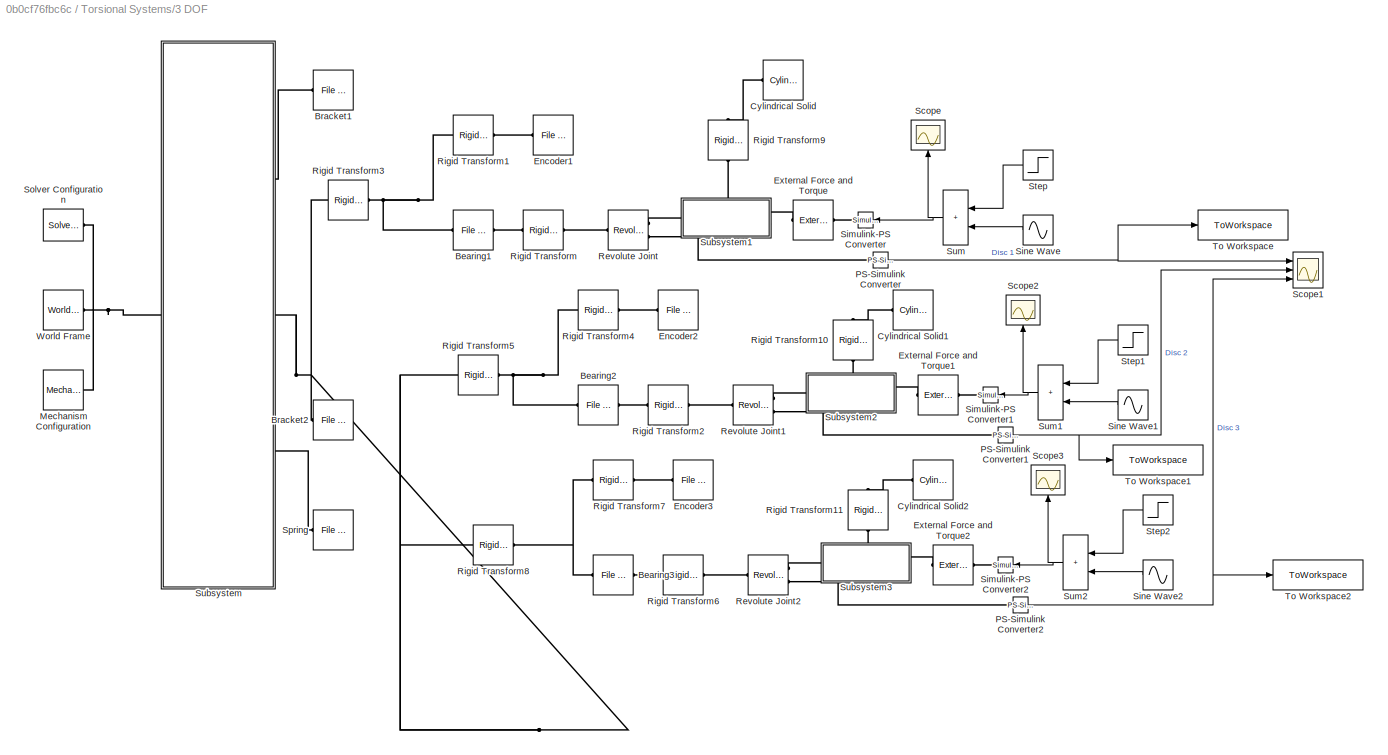
BLOCK [SubSystem] Torsional Systems/3 DOF
  Ports = []
  RequestExecContextInheritance = off
  VariantControl = dof3
BLOCK [Reference] Torsional Systems/3 DOF/Bearing1  REF=sm_lib/Body Elements/File Solid
  Ports = [0, 0, 0, 0, 0, 1, 1]
  SourceBlock = sm_lib/Body Elements/File Solid
  SourceProductBaseCode = MS
  SourceType = File Solid
BLOCK [Reference] Torsional Systems/3 DOF/Bearing2  REF=sm_lib/Body Elements/File Solid
  Ports = [0, 0, 0, 0, 0, 1, 1]
  SourceBlock = sm_lib/Body Elements/File Solid
  SourceProductBaseCode = MS
  SourceType = File Solid
BLOCK [Reference] Torsional Systems/3 DOF/Bearing3  REF=sm_lib/Body Elements/File Solid
  Ports = [0, 0, 0, 0, 0, 1, 1]
  SourceBlock = sm_lib/Body Elements/File Solid
  SourceProductBaseCode = MS
  SourceType = File Solid
BLOCK [Reference] Torsional Systems/3 DOF/Bracket1  REF=sm_lib/Body Elements/File Solid
  Ports = [0, 0, 0, 0, 0, 1, 1]
  SourceBlock = sm_lib/Body Elements/File Solid
  SourceProductBaseCode = MS
  SourceType = File Solid
BLOCK [Reference] Torsional Systems/3 DOF/Bracket2  REF=sm_lib/Body Elements/File Solid
  Ports = [0, 0, 0, 0, 0, 1, 1]
  SourceBlock = sm_lib/Body Elements/File Solid
  SourceProductBaseCode = MS
  SourceType = File Solid
BLOCK [Reference] Torsional Systems/3 DOF/Cylindrical Solid  REF=sm_lib/Body Elements/Cylindrical Solid
  Commented = on
  Ports = [0, 0, 0, 0, 0, 1]
  SourceBlock = sm_lib/Body Elements/Cylindrical Solid
  SourceProductBaseCode = MS
  SourceType = Cylindrical Solid
BLOCK [Reference] Torsional Systems/3 DOF/Cylindrical Solid1  REF=sm_lib/Body Elements/Cylindrical Solid
  Commented = on
  Ports = [0, 0, 0, 0, 0, 1]
  SourceBlock = sm_lib/Body Elements/Cylindrical Solid
  SourceProductBaseCode = MS
  SourceType = Cylindrical Solid
BLOCK [Reference] Torsional Systems/3 DOF/Cylindrical Solid2  REF=sm_lib/Body Elements/Cylindrical Solid
  Commented = on
  Ports = [0, 0, 0, 0, 0, 1]
  SourceBlock = sm_lib/Body Elements/Cylindrical Solid
  SourceProductBaseCode = MS
  SourceType = Cylindrical Solid
BLOCK [Reference] Torsional Systems/3 DOF/Encoder1  REF=sm_lib/Body Elements/File Solid
  Ports = [0, 0, 0, 0, 0, 1, 1]
  SourceBlock = sm_lib/Body Elements/File Solid
  SourceProductBaseCode = MS
  SourceType = File Solid
BLOCK [Reference] Torsional Systems/3 DOF/Encoder2  REF=sm_lib/Body Elements/File Solid
  Ports = [0, 0, 0, 0, 0, 1, 1]
  SourceBlock = sm_lib/Body Elements/File Solid
  SourceProductBaseCode = MS
  SourceType = File Solid
BLOCK [Reference] Torsional Systems/3 DOF/Encoder3  REF=sm_lib/Body Elements/File Solid
  Ports = [0, 0, 0, 0, 0, 1, 1]
  SourceBlock = sm_lib/Body Elements/File Solid
  SourceProductBaseCode = MS
  SourceType = File Solid
BLOCK [Reference] Torsional Systems/3 DOF/External Force and Torque  REF=sm_lib/Forces and
Torques/External Force
and Torque
  NameLocation = top
  Ports = [0, 0, 0, 0, 0, 1, 1]
  SourceBlock = sm_lib/Forces and\nTorques/External Force\nand Torque
  SourceProductBaseCode = MS
  SourceType = External Force\nand Torque
BLOCK [Reference] Torsional Systems/3 DOF/External Force and Torque1  REF=sm_lib/Forces and
Torques/External Force
and Torque
  NameLocation = top
  Ports = [0, 0, 0, 0, 0, 1, 1]
  SourceBlock = sm_lib/Forces and\nTorques/External Force\nand Torque
  SourceProductBaseCode = MS
  SourceType = External Force\nand Torque
BLOCK [Reference] Torsional Systems/3 DOF/External Force and Torque2  REF=sm_lib/Forces and
Torques/External Force
and Torque
  NameLocation = top
  Ports = [0, 0, 0, 0, 0, 1, 1]
  SourceBlock = sm_lib/Forces and\nTorques/External Force\nand Torque
  SourceProductBaseCode = MS
  SourceType = External Force\nand Torque
BLOCK [Reference] Torsional Systems/3 DOF/Mechanism Configuration  REF=sm_lib/Utilities/Mechanism
Configuration
  Ports = [0, 0, 0, 0, 0, 0, 1]
  SourceBlock = sm_lib/Utilities/Mechanism\nConfiguration
  SourceProductBaseCode = MS
  SourceType = Mechanism\nConfiguration
BLOCK [Reference] Torsional Systems/3 DOF/PS-Simulink Converter  REF=nesl_utility/PS-Simulink
Converter
  Ports = [0, 1, 0, 0, 0, 1]
  SourceBlock = nesl_utility/PS-Simulink\nConverter
  SourceProductBaseCode = PW,SS
  SourceType = PS-Simulink\nConverter
BLOCK [Reference] Torsional Systems/3 DOF/PS-Simulink Converter1  REF=nesl_utility/PS-Simulink
Converter
  Ports = [0, 1, 0, 0, 0, 1]
  SourceBlock = nesl_utility/PS-Simulink\nConverter
  SourceProductBaseCode = PW,SS
  SourceType = PS-Simulink\nConverter
BLOCK [Reference] Torsional Systems/3 DOF/PS-Simulink Converter2  REF=nesl_utility/PS-Simulink
Converter
  Ports = [0, 1, 0, 0, 0, 1]
  SourceBlock = nesl_utility/PS-Simulink\nConverter
  SourceProductBaseCode = PW,SS
  SourceType = PS-Simulink\nConverter
BLOCK [Reference] Torsional Systems/3 DOF/Revolute Joint  REF=sm_lib/Joints/Revolute Joint
  Ports = [0, 0, 0, 0, 0, 1, 2]
  SourceBlock = sm_lib/Joints/Revolute Joint
  SourceProductBaseCode = MS
  SourceType = Revolute Joint
BLOCK [Reference] Torsional Systems/3 DOF/Revolute Joint1  REF=sm_lib/Joints/Revolute Joint
  Ports = [0, 0, 0, 0, 0, 1, 2]
  SourceBlock = sm_lib/Joints/Revolute Joint
  SourceProductBaseCode = MS
  SourceType = Revolute Joint
BLOCK [Reference] Torsional Systems/3 DOF/Revolute Joint2  REF=sm_lib/Joints/Revolute Joint
  Ports = [0, 0, 0, 0, 0, 1, 2]
  SourceBlock = sm_lib/Joints/Revolute Joint
  SourceProductBaseCode = MS
  SourceType = Revolute Joint
BLOCK [Reference] Torsional Systems/3 DOF/Rigid Transform  REF=sm_lib/Frames and
Transforms/Rigid
Transform
  Ports = [0, 0, 0, 0, 0, 1, 1]
  SourceBlock = sm_lib/Frames and\nTransforms/Rigid\nTransform
  SourceProductBaseCode = MS
  SourceType = Rigid\nTransform
BLOCK [Reference] Torsional Systems/3 DOF/Rigid Transform1  REF=sm_lib/Frames and
Transforms/Rigid
Transform
  Ports = [0, 0, 0, 0, 0, 1, 1]
  SourceBlock = sm_lib/Frames and\nTransforms/Rigid\nTransform
  SourceProductBaseCode = MS
  SourceType = Rigid\nTransform
BLOCK [Reference] Torsional Systems/3 DOF/Rigid Transform10  REF=sm_lib/Frames and
Transforms/Rigid
Transform
  Commented = on
  NameLocation = right
  Ports = [0, 0, 0, 0, 0, 1, 1]
  SourceBlock = sm_lib/Frames and\nTransforms/Rigid\nTransform
  SourceProductBaseCode = MS
  SourceType = Rigid\nTransform
BLOCK [Reference] Torsional Systems/3 DOF/Rigid Transform11  REF=sm_lib/Frames and
Transforms/Rigid
Transform
  Commented = on
  NameLocation = right
  Ports = [0, 0, 0, 0, 0, 1, 1]
  SourceBlock = sm_lib/Frames and\nTransforms/Rigid\nTransform
  SourceProductBaseCode = MS
  SourceType = Rigid\nTransform
BLOCK [Reference] Torsional Systems/3 DOF/Rigid Transform2  REF=sm_lib/Frames and
Transforms/Rigid
Transform
  Ports = [0, 0, 0, 0, 0, 1, 1]
  SourceBlock = sm_lib/Frames and\nTransforms/Rigid\nTransform
  SourceProductBaseCode = MS
  SourceType = Rigid\nTransform
BLOCK [Reference] Torsional Systems/3 DOF/Rigid Transform3  REF=sm_lib/Frames and
Transforms/Rigid
Transform
  Ports = [0, 0, 0, 0, 0, 1, 1]
  SourceBlock = sm_lib/Frames and\nTransforms/Rigid\nTransform
  SourceProductBaseCode = MS
  SourceType = Rigid\nTransform
BLOCK [Reference] Torsional Systems/3 DOF/Rigid Transform4  REF=sm_lib/Frames and
Transforms/Rigid
Transform
  Ports = [0, 0, 0, 0, 0, 1, 1]
  SourceBlock = sm_lib/Frames and\nTransforms/Rigid\nTransform
  SourceProductBaseCode = MS
  SourceType = Rigid\nTransform
BLOCK [Reference] Torsional Systems/3 DOF/Rigid Transform5  REF=sm_lib/Frames and
Transforms/Rigid
Transform
  Ports = [0, 0, 0, 0, 0, 1, 1]
  SourceBlock = sm_lib/Frames and\nTransforms/Rigid\nTransform
  SourceProductBaseCode = MS
  SourceType = Rigid\nTransform
BLOCK [Reference] Torsional Systems/3 DOF/Rigid Transform6  REF=sm_lib/Frames and
Transforms/Rigid
Transform
  Ports = [0, 0, 0, 0, 0, 1, 1]
  SourceBlock = sm_lib/Frames and\nTransforms/Rigid\nTransform
  SourceProductBaseCode = MS
  SourceType = Rigid\nTransform
BLOCK [Reference] Torsional Systems/3 DOF/Rigid Transform7  REF=sm_lib/Frames and
Transforms/Rigid
Transform
  Ports = [0, 0, 0, 0, 0, 1, 1]
  SourceBlock = sm_lib/Frames and\nTransforms/Rigid\nTransform
  SourceProductBaseCode = MS
  SourceType = Rigid\nTransform
BLOCK [Reference] Torsional Systems/3 DOF/Rigid Transform8  REF=sm_lib/Frames and
Transforms/Rigid
Transform
  Ports = [0, 0, 0, 0, 0, 1, 1]
  SourceBlock = sm_lib/Frames and\nTransforms/Rigid\nTransform
  SourceProductBaseCode = MS
  SourceType = Rigid\nTransform
BLOCK [Reference] Torsional Systems/3 DOF/Rigid Transform9  REF=sm_lib/Frames and
Transforms/Rigid
Transform
  Commented = on
  NameLocation = right
  Ports = [0, 0, 0, 0, 0, 1, 1]
  SourceBlock = sm_lib/Frames and\nTransforms/Rigid\nTransform
  SourceProductBaseCode = MS
  SourceType = Rigid\nTransform
BLOCK [Scope] Torsional Systems/3 DOF/Scope
  Floating = off
  NameLocation = right
  NumInputPorts = 1
  Ports = [1]
  ScopeSpecificationString = Simulink.scopes.TimeScopeBlockCfg('CurrentConfiguration', extmgr.ConfigurationSet(extmgr.Configuration('Core','General UI',true),extmgr.Configuration('Core','Source UI',true),extmgr.Configuration('Sources','WiredSimulink',true,'DataLoggingVariableName','ScopeData3'),extmgr.Configuration('Visuals','Time Domain',true,'SerializedDisplays',{struct('MinYLimReal','-0.0719','MaxYLimReal','1.02832','YLabe...<+1405ch>
BLOCK [Scope] Torsional Systems/3 DOF/Scope1
  Floating = off
  NumInputPorts = 3
  Ports = [3]
  ScopeSpecificationString = Simulink.scopes.TimeScopeBlockCfg('CurrentConfiguration', extmgr.ConfigurationSet(extmgr.Configuration('Core','General UI',true),extmgr.Configuration('Core','Source UI',true),extmgr.Configuration('Sources','WiredSimulink',true,'DataLoggingVariableName','ScopeData1'),extmgr.Configuration('Visuals','Time Domain',true,'SerializedDisplays',{struct('MinYLimReal','-36.31488','MaxYLimReal','37.36832','YL...<+1464ch>
BLOCK [Scope] Torsional Systems/3 DOF/Scope2
  Floating = off
  NameLocation = right
  NumInputPorts = 1
  Ports = [1]
  ScopeSpecificationString = Simulink.scopes.TimeScopeBlockCfg('CurrentConfiguration', extmgr.ConfigurationSet(extmgr.Configuration('Core','General UI',true),extmgr.Configuration('Core','Source UI',true),extmgr.Configuration('Sources','WiredSimulink',true,'DataLoggingVariableName','ScopeData4'),extmgr.Configuration('Visuals','Time Domain',true,'SerializedDisplays',{struct('MinYLimReal','-0.0719','MaxYLimReal','1.02832','YLabe...<+1405ch>
BLOCK [Scope] Torsional Systems/3 DOF/Scope3
  Floating = off
  NameLocation = right
  NumInputPorts = 1
  Ports = [1]
  ScopeSpecificationString = Simulink.scopes.TimeScopeBlockCfg('CurrentConfiguration', extmgr.ConfigurationSet(extmgr.Configuration('Core','General UI',true),extmgr.Configuration('Core','Source UI',true),extmgr.Configuration('Sources','WiredSimulink',true,'DataLoggingVariableName','ScopeData5'),extmgr.Configuration('Visuals','Time Domain',true,'SerializedDisplays',{struct('MinYLimReal','-0.0719','MaxYLimReal','1.02832','YLabe...<+1405ch>
BLOCK [Reference] Torsional Systems/3 DOF/Simulink-PS Converter  REF=nesl_utility/Simulink-PS
Converter
  NameLocation = top
  Ports = [1, 0, 0, 0, 0, 0, 1]
  SourceBlock = nesl_utility/Simulink-PS\nConverter
  SourceProductBaseCode = PW,SS
  SourceType = Simulink-PS\nConverter
BLOCK [Reference] Torsional Systems/3 DOF/Simulink-PS Converter1  REF=nesl_utility/Simulink-PS
Converter
  NameLocation = top
  Ports = [1, 0, 0, 0, 0, 0, 1]
  SourceBlock = nesl_utility/Simulink-PS\nConverter
  SourceProductBaseCode = PW,SS
  SourceType = Simulink-PS\nConverter
BLOCK [Reference] Torsional Systems/3 DOF/Simulink-PS Converter2  REF=nesl_utility/Simulink-PS
Converter
  NameLocation = top
  Ports = [1, 0, 0, 0, 0, 0, 1]
  SourceBlock = nesl_utility/Simulink-PS\nConverter
  SourceProductBaseCode = PW,SS
  SourceType = Simulink-PS\nConverter
BLOCK [Sin] Torsional Systems/3 DOF/Sine Wave
  Amplitude = Har_Force_m1
  Frequency = freq_m1
  NameLocation = top
  Ports = [0, 1]
  SampleTime = 0
BLOCK [Sin] Torsional Systems/3 DOF/Sine Wave1
  Amplitude = Har_Force_m2
  Frequency = freq_m2
  NameLocation = top
  Ports = [0, 1]
  SampleTime = 0
BLOCK [Sin] Torsional Systems/3 DOF/Sine Wave2
  Amplitude = Har_Force_m3
  Frequency = freq_m3
  NameLocation = top
  Ports = [0, 1]
  SampleTime = 0
BLOCK [Reference] Torsional Systems/3 DOF/Solver Configuration  REF=nesl_utility/Solver
Configuration
  Ports = [0, 0, 0, 0, 0, 0, 1]
  SourceBlock = nesl_utility/Solver\nConfiguration
  SourceProductBaseCode = PW,SS
  SourceType = Solver\nConfiguration
BLOCK [Reference] Torsional Systems/3 DOF/Spring  REF=sm_lib/Body Elements/File Solid
  Ports = [0, 0, 0, 0, 0, 1]
  SourceBlock = sm_lib/Body Elements/File Solid
  SourceProductBaseCode = MS
  SourceType = File Solid
BLOCK [Step] Torsional Systems/3 DOF/Step
  After = 0
  Before = Force_m1
  NameLocation = top
  SampleTime = 0
  Time = .1
BLOCK [Step] Torsional Systems/3 DOF/Step1
  After = 0
  Before = Force_m2
  NameLocation = top
  SampleTime = 0
  Time = .1
BLOCK [Step] Torsional Systems/3 DOF/Step2
  After = 0
  Before = Force_m3
  NameLocation = top
  SampleTime = 0
  Time = .1
BLOCK [SubSystem] Torsional Systems/3 DOF/Subsystem
  Ports = [0, 0, 0, 0, 0, 1, 3]
  RequestExecContextInheritance = off
BLOCK [PMIOPort] Torsional Systems/3 DOF/Subsystem/Bottom
  Port = 4
  Side = Right
BLOCK [PMIOPort] Torsional Systems/3 DOF/Subsystem/Bracket1
  Port = 2
  Side = Right
BLOCK [PMIOPort] Torsional Systems/3 DOF/Subsystem/Bracket2
  NameLocation = top
  Port = 3
  Side = Right
BLOCK [Reference] Torsional Systems/3 DOF/Subsystem/Frame  REF=sm_lib/Body Elements/File Solid
  Ports = [0, 0, 0, 0, 0, 5, 5]
  SourceBlock = sm_lib/Body Elements/File Solid
  SourceProductBaseCode = MS
  SourceType = File Solid
BLOCK [Reference] Torsional Systems/3 DOF/Subsystem/Rigid Transform3  REF=sm_lib/Frames and
Transforms/Rigid
Transform
  Ports = [0, 0, 0, 0, 0, 1, 1]
  SourceBlock = sm_lib/Frames and\nTransforms/Rigid\nTransform
  SourceProductBaseCode = MS
  SourceType = Rigid\nTransform
BLOCK [Reference] Torsional Systems/3 DOF/Subsystem/Rigid Transform4  REF=sm_lib/Frames and
Transforms/Rigid
Transform
  NameLocation = top
  Ports = [0, 0, 0, 0, 0, 1, 1]
  SourceBlock = sm_lib/Frames and\nTransforms/Rigid\nTransform
  SourceProductBaseCode = MS
  SourceType = Rigid\nTransform
BLOCK [PMIOPort] Torsional Systems/3 DOF/Subsystem/W_Conn
  Side = Left
BLOCK [SubSystem] Torsional Systems/3 DOF/Subsystem1
  Ports = [0, 0, 0, 0, 0, 2, 1]
  RequestExecContextInheritance = off
BLOCK [Reference] Torsional Systems/3 DOF/Subsystem1/Mass1  REF=sm_lib/Body Elements/File Solid
  NameLocation = top
  Ports = [0, 0, 0, 0, 0, 2, 1]
  SourceBlock = sm_lib/Body Elements/File Solid
  SourceProductBaseCode = MS
  SourceType = File Solid
BLOCK [PMIOPort] Torsional Systems/3 DOF/Subsystem1/center
  Port = 3
  Side = Right
BLOCK [PMIOPort] Torsional Systems/3 DOF/Subsystem1/force
  Side = Left
BLOCK [PMIOPort] Torsional Systems/3 DOF/Subsystem1/mass
  Port = 2
  Side = Left
BLOCK [SubSystem] Torsional Systems/3 DOF/Subsystem2
  Ports = [0, 0, 0, 0, 0, 2, 1]
  RequestExecContextInheritance = off
BLOCK [Reference] Torsional Systems/3 DOF/Subsystem2/Mass2  REF=sm_lib/Body Elements/File Solid
  NameLocation = top
  Ports = [0, 0, 0, 0, 0, 2, 1]
  SourceBlock = sm_lib/Body Elements/File Solid
  SourceProductBaseCode = MS
  SourceType = File Solid
BLOCK [PMIOPort] Torsional Systems/3 DOF/Subsystem2/center
  Port = 3
  Side = Right
BLOCK [PMIOPort] Torsional Systems/3 DOF/Subsystem2/force
  Side = Left
BLOCK [PMIOPort] Torsional Systems/3 DOF/Subsystem2/mass
  Port = 2
  Side = Left
BLOCK [SubSystem] Torsional Systems/3 DOF/Subsystem3
  Ports = [0, 0, 0, 0, 0, 2, 1]
  RequestExecContextInheritance = off
BLOCK [Reference] Torsional Systems/3 DOF/Subsystem3/Mass3  REF=sm_lib/Body Elements/File Solid
  NameLocation = top
  Ports = [0, 0, 0, 0, 0, 2, 1]
  SourceBlock = sm_lib/Body Elements/File Solid
  SourceProductBaseCode = MS
  SourceType = File Solid
BLOCK [PMIOPort] Torsional Systems/3 DOF/Subsystem3/center
  Port = 3
  Side = Right
BLOCK [PMIOPort] Torsional Systems/3 DOF/Subsystem3/force
  Side = Left
BLOCK [PMIOPort] Torsional Systems/3 DOF/Subsystem3/mass
  Port = 2
  Side = Left
BLOCK [Sum] Torsional Systems/3 DOF/Sum
  IconShape = rectangular
  NameLocation = top
  Ports = [2, 1]
BLOCK [Sum] Torsional Systems/3 DOF/Sum1
  IconShape = rectangular
  NameLocation = top
  Ports = [2, 1]
BLOCK [Sum] Torsional Systems/3 DOF/Sum2
  IconShape = rectangular
  NameLocation = top
  Ports = [2, 1]
BLOCK [ToWorkspace] Torsional Systems/3 DOF/To Workspace
  FixptAsFi = on
  MaxDataPoints = inf
  Ports = [1]
  SampleTime = -1
  VariableName = disc1_pos
BLOCK [ToWorkspace] Torsional Systems/3 DOF/To Workspace1
  FixptAsFi = on
  MaxDataPoints = inf
  Ports = [1]
  SampleTime = -1
  VariableName = disc2_pos
BLOCK [ToWorkspace] Torsional Systems/3 DOF/To Workspace2
  FixptAsFi = on
  MaxDataPoints = inf
  Ports = [1]
  SampleTime = -1
  VariableName = disc3_pos
BLOCK [Reference] Torsional Systems/3 DOF/World Frame  REF=sm_lib/Frames and
Transforms/World Frame
  Ports = [0, 0, 0, 0, 0, 0, 1]
  SourceBlock = sm_lib/Frames and\nTransforms/World Frame
  SourceProductBaseCode = MS
  SourceType = World Frame
ANNOTATION Torsional Systems: 1 DOF System
ANNOTATION Torsional Systems: PID Controlled Disc
ANNOTATION Torsional Systems: 2 DOF System
ANNOTATION Torsional Systems: 3 DOF System
LINE Torsional Systems/1 DOF PID/PID Controller:1 -> Torsional Systems/1 DOF PID/Simulink-PS Converter2:1
NET Torsional Systems/1 DOF PID/PS-Simulink Converter1:1 -> Torsional Systems/1 DOF PID/Scope1:3, Torsional Systems/1 DOF PID/To Workspace1:1
NET Torsional Systems/1 DOF PID/PS-Simulink Converter:1 -> Torsional Systems/1 DOF PID/Scope1:1, Torsional Systems/1 DOF PID/Sum2:2, Torsional Systems/1 DOF PID/To Workspace:1
LINE Torsional Systems/1 DOF PID/Pulse Generator1:1 -> Torsional Systems/1 DOF PID/Sum1:3
LINE Torsional Systems/1 DOF PID/Pulse Generator:1 -> Torsional Systems/1 DOF PID/Sum:3
NET Torsional Systems/1 DOF PID/Signal Generator:1 -> Torsional Systems/1 DOF PID/Scope1:2, Torsional Systems/1 DOF PID/Sum3:2
LINE Torsional Systems/1 DOF PID/Sine Wave1:1 -> Torsional Systems/1 DOF PID/Sum1:2
LINE Torsional Systems/1 DOF PID/Sine Wave2:1 -> Torsional Systems/1 DOF PID/Sum3:1
LINE Torsional Systems/1 DOF PID/Sine Wave:1 -> Torsional Systems/1 DOF PID/Sum:2
LINE Torsional Systems/1 DOF PID/Step1:1 -> Torsional Systems/1 DOF PID/Sum1:1
LINE Torsional Systems/1 DOF PID/Step2:1 -> Torsional Systems/1 DOF PID/Sum3:3
LINE Torsional Systems/1 DOF PID/Step:1 -> Torsional Systems/1 DOF PID/Sum:1
NET Torsional Systems/1 DOF PID/Sum1:1 -> Torsional Systems/1 DOF PID/Scope2:1, Torsional Systems/1 DOF PID/Simulink-PS Converter1:1
LINE Torsional Systems/1 DOF PID/Sum2:1 -> Torsional Systems/1 DOF PID/PID Controller:1
LINE Torsional Systems/1 DOF PID/Sum3:1 -> Torsional Systems/1 DOF PID/Sum2:1
NET Torsional Systems/1 DOF PID/Sum:1 -> Torsional Systems/1 DOF PID/Scope:1, Torsional Systems/1 DOF PID/Simulink-PS Converter:1
NET Torsional Systems/1 DOF/PS-Simulink Converter:1 -> Torsional Systems/1 DOF/Scope1:1, Torsional Systems/1 DOF/To Workspace:1
LINE Torsional Systems/1 DOF/Sine Wave:1 -> Torsional Systems/1 DOF/Sum:2
LINE Torsional Systems/1 DOF/Step:1 -> Torsional Systems/1 DOF/Sum:1
NET Torsional Systems/1 DOF/Sum:1 -> Torsional Systems/1 DOF/Scope:1, Torsional Systems/1 DOF/Simulink-PS Converter:1
NET Torsional Systems/2 DOF/PS-Simulink Converter1:1 -> Torsional Systems/2 DOF/Scope1:2, Torsional Systems/2 DOF/To Workspace1:1
NET Torsional Systems/2 DOF/PS-Simulink Converter:1 -> Torsional Systems/2 DOF/Scope1:1, Torsional Systems/2 DOF/To Workspace:1
LINE Torsional Systems/2 DOF/Sine Wave1:1 -> Torsional Systems/2 DOF/Sum1:2
LINE Torsional Systems/2 DOF/Sine Wave:1 -> Torsional Systems/2 DOF/Sum:2
LINE Torsional Systems/2 DOF/Step1:1 -> Torsional Systems/2 DOF/Sum1:1
LINE Torsional Systems/2 DOF/Step:1 -> Torsional Systems/2 DOF/Sum:1
NET Torsional Systems/2 DOF/Sum1:1 -> Torsional Systems/2 DOF/Scope2:1, Torsional Systems/2 DOF/Simulink-PS Converter1:1
NET Torsional Systems/2 DOF/Sum:1 -> Torsional Systems/2 DOF/Scope:1, Torsional Systems/2 DOF/Simulink-PS Converter:1
NET Torsional Systems/3 DOF/PS-Simulink Converter1:1 -> Torsional Systems/3 DOF/Scope1:2, Torsional Systems/3 DOF/To Workspace1:1
NET Torsional Systems/3 DOF/PS-Simulink Converter2:1 -> Torsional Systems/3 DOF/Scope1:3, Torsional Systems/3 DOF/To Workspace2:1
NET Torsional Systems/3 DOF/PS-Simulink Converter:1 -> Torsional Systems/3 DOF/Scope1:1, Torsional Systems/3 DOF/To Workspace:1
LINE Torsional Systems/3 DOF/Sine Wave1:1 -> Torsional Systems/3 DOF/Sum1:2
LINE Torsional Systems/3 DOF/Sine Wave2:1 -> Torsional Systems/3 DOF/Sum2:2
LINE Torsional Systems/3 DOF/Sine Wave:1 -> Torsional Systems/3 DOF/Sum:2
LINE Torsional Systems/3 DOF/Step1:1 -> Torsional Systems/3 DOF/Sum1:1
LINE Torsional Systems/3 DOF/Step2:1 -> Torsional Systems/3 DOF/Sum2:1
LINE Torsional Systems/3 DOF/Step:1 -> Torsional Systems/3 DOF/Sum:1
NET Torsional Systems/3 DOF/Sum1:1 -> Torsional Systems/3 DOF/Scope2:1, Torsional Systems/3 DOF/Simulink-PS Converter1:1
NET Torsional Systems/3 DOF/Sum2:1 -> Torsional Systems/3 DOF/Scope3:1, Torsional Systems/3 DOF/Simulink-PS Converter2:1
NET Torsional Systems/3 DOF/Sum:1 -> Torsional Systems/3 DOF/Scope:1, Torsional Systems/3 DOF/Simulink-PS Converter:1
PNET net1: Torsional Systems/1 DOF PID/Bearing1:LConn1 -- Torsional Systems/1 DOF PID/Rigid Transform1:LConn1 -- Torsional Systems/1 DOF PID/Rigid Transform3:RConn1
PLINE Torsional Systems/1 DOF PID/Bearing1:RConn1 -- Torsional Systems/1 DOF PID/Rigid Transform:LConn1
PNET net2: Torsional Systems/1 DOF PID/Bearing2:LConn1 -- Torsional Systems/1 DOF PID/Rigid Transform4:LConn1 -- Torsional Systems/1 DOF PID/Rigid Transform5:RConn1
PLINE Torsional Systems/1 DOF PID/Bearing2:RConn1 -- Torsional Systems/1 DOF PID/Rigid Transform2:LConn1
PLINE Torsional Systems/1 DOF PID/Bracket1:LConn1 -- Torsional Systems/1 DOF PID/Subsystem:RConn1
PLINE Torsional Systems/1 DOF PID/Bracket2:LConn1 -- Torsional Systems/1 DOF PID/Subsystem:RConn2
PLINE Torsional Systems/1 DOF PID/Bracket2:RConn1 -- Torsional Systems/1 DOF PID/Rigid Transform3:LConn1
PLINE Torsional Systems/1 DOF PID/Bracket3:LConn1 -- Torsional Systems/1 DOF PID/Subsystem1:RConn1
PLINE Torsional Systems/1 DOF PID/Bracket4:LConn1 -- Torsional Systems/1 DOF PID/Subsystem1:RConn2
PLINE Torsional Systems/1 DOF PID/Bracket4:RConn1 -- Torsional Systems/1 DOF PID/Rigid Transform5:LConn1
PLINE Torsional Systems/1 DOF PID/Cylindrical Solid1:LConn1 -- Torsional Systems/1 DOF PID/Rigid Transform7:RConn1
PLINE Torsional Systems/1 DOF PID/Cylindrical Solid:LConn1 -- Torsional Systems/1 DOF PID/Rigid Transform9:RConn1
PLINE Torsional Systems/1 DOF PID/Encoder1:LConn1 -- Torsional Systems/1 DOF PID/Rigid Transform1:RConn1
PLINE Torsional Systems/1 DOF PID/Encoder2:LConn1 -- Torsional Systems/1 DOF PID/Rigid Transform4:RConn1
PLINE Torsional Systems/1 DOF PID/External Force and Torque1:LConn1 -- Torsional Systems/1 DOF PID/Simulink-PS Converter1:RConn1
PLINE Torsional Systems/1 DOF PID/External Force and Torque1:RConn1 -- Torsional Systems/1 DOF PID/Subsystem3:LConn1
PLINE Torsional Systems/1 DOF PID/External Force and Torque:LConn1 -- Torsional Systems/1 DOF PID/Simulink-PS Converter:RConn1
PLINE Torsional Systems/1 DOF PID/External Force and Torque:RConn1 -- Torsional Systems/1 DOF PID/Subsystem2:LConn1
PNET net3: Torsional Systems/1 DOF PID/Mechanism Configuration:RConn1 -- Torsional Systems/1 DOF PID/Rigid Transform6:LConn1 -- Torsional Systems/1 DOF PID/Solver Configuration:RConn1 -- Torsional Systems/1 DOF PID/Subsystem:LConn1 -- Torsional Systems/1 DOF PID/World Frame:RConn1
PLINE Torsional Systems/1 DOF PID/PS-Simulink Converter1:LConn1 -- Torsional Systems/1 DOF PID/Revolute Joint1:RConn2
PLINE Torsional Systems/1 DOF PID/PS-Simulink Converter:LConn1 -- Torsional Systems/1 DOF PID/Revolute Joint:RConn2
PLINE Torsional Systems/1 DOF PID/Revolute Joint1:LConn1 -- Torsional Systems/1 DOF PID/Rigid Transform2:RConn1
PLINE Torsional Systems/1 DOF PID/Revolute Joint1:RConn1 -- Torsional Systems/1 DOF PID/Subsystem3:RConn1
PLINE Torsional Systems/1 DOF PID/Revolute Joint:LConn1 -- Torsional Systems/1 DOF PID/Rigid Transform:RConn1
PLINE Torsional Systems/1 DOF PID/Revolute Joint:LConn2 -- Torsional Systems/1 DOF PID/Simulink-PS Converter2:RConn1
PLINE Torsional Systems/1 DOF PID/Revolute Joint:RConn1 -- Torsional Systems/1 DOF PID/Subsystem2:RConn1
PLINE Torsional Systems/1 DOF PID/Rigid Transform6:RConn1 -- Torsional Systems/1 DOF PID/Subsystem1:LConn1
PLINE Torsional Systems/1 DOF PID/Rigid Transform7:LConn1 -- Torsional Systems/1 DOF PID/Subsystem3:LConn2
PLINE Torsional Systems/1 DOF PID/Rigid Transform9:LConn1 -- Torsional Systems/1 DOF PID/Subsystem2:LConn2
PLINE Torsional Systems/1 DOF PID/Spring1:LConn1 -- Torsional Systems/1 DOF PID/Subsystem1:RConn3
PLINE Torsional Systems/1 DOF PID/Spring:LConn1 -- Torsional Systems/1 DOF PID/Subsystem:RConn3
PLINE Torsional Systems/1 DOF PID/Subsystem/Bottom:RConn1 -- Torsional Systems/1 DOF PID/Subsystem/Frame:RConn3
PLINE Torsional Systems/1 DOF PID/Subsystem/Bracket1:RConn1 -- Torsional Systems/1 DOF PID/Subsystem/Rigid Transform3:RConn1
PLINE Torsional Systems/1 DOF PID/Subsystem/Bracket2:RConn1 -- Torsional Systems/1 DOF PID/Subsystem/Rigid Transform4:RConn1
PLINE Torsional Systems/1 DOF PID/Subsystem/Frame:LConn1 -- Torsional Systems/1 DOF PID/Subsystem/W_Conn:RConn1
PLINE Torsional Systems/1 DOF PID/Subsystem/Frame:LConn3 -- Torsional Systems/1 DOF PID/Subsystem/Rigid Transform4:LConn1
PLINE Torsional Systems/1 DOF PID/Subsystem/Frame:RConn2 -- Torsional Systems/1 DOF PID/Subsystem/Rigid Transform3:LConn1
PLINE Torsional Systems/1 DOF PID/Subsystem1/Bottom:RConn1 -- Torsional Systems/1 DOF PID/Subsystem1/Frame:RConn3
PLINE Torsional Systems/1 DOF PID/Subsystem1/Bracket1:RConn1 -- Torsional Systems/1 DOF PID/Subsystem1/Rigid Transform3:RConn1
PLINE Torsional Systems/1 DOF PID/Subsystem1/Bracket2:RConn1 -- Torsional Systems/1 DOF PID/Subsystem1/Rigid Transform4:RConn1
PLINE Torsional Systems/1 DOF PID/Subsystem1/Frame:LConn1 -- Torsional Systems/1 DOF PID/Subsystem1/W_Conn:RConn1
PLINE Torsional Systems/1 DOF PID/Subsystem1/Frame:LConn3 -- Torsional Systems/1 DOF PID/Subsystem1/Rigid Transform4:LConn1
PLINE Torsional Systems/1 DOF PID/Subsystem1/Frame:RConn2 -- Torsional Systems/1 DOF PID/Subsystem1/Rigid Transform3:LConn1
PLINE Torsional Systems/1 DOF PID/Subsystem2/Mass1:LConn1 -- Torsional Systems/1 DOF PID/Subsystem2/force:RConn1
PLINE Torsional Systems/1 DOF PID/Subsystem2/Mass1:LConn2 -- Torsional Systems/1 DOF PID/Subsystem2/mass:RConn1
PLINE Torsional Systems/1 DOF PID/Subsystem2/Mass1:RConn1 -- Torsional Systems/1 DOF PID/Subsystem2/center:RConn1
PLINE Torsional Systems/1 DOF PID/Subsystem3/Mass1:LConn1 -- Torsional Systems/1 DOF PID/Subsystem3/force:RConn1
PLINE Torsional Systems/1 DOF PID/Subsystem3/Mass1:LConn2 -- Torsional Systems/1 DOF PID/Subsystem3/mass:RConn1
PLINE Torsional Systems/1 DOF PID/Subsystem3/Mass1:RConn1 -- Torsional Systems/1 DOF PID/Subsystem3/center:RConn1
PNET net4: Torsional Systems/1 DOF/Bearing1:LConn1 -- Torsional Systems/1 DOF/Rigid Transform1:LConn1 -- Torsional Systems/1 DOF/Rigid Transform3:RConn1
PLINE Torsional Systems/1 DOF/Bearing1:RConn1 -- Torsional Systems/1 DOF/Rigid Transform:LConn1
PLINE Torsional Systems/1 DOF/Bracket1:LConn1 -- Torsional Systems/1 DOF/Subsystem:RConn1
PLINE Torsional Systems/1 DOF/Bracket2:LConn1 -- Torsional Systems/1 DOF/Subsystem:RConn2
PLINE Torsional Systems/1 DOF/Bracket2:RConn1 -- Torsional Systems/1 DOF/Rigid Transform3:LConn1
PLINE Torsional Systems/1 DOF/Cylindrical Solid:LConn1 -- Torsional Systems/1 DOF/Rigid Transform2:RConn1
PLINE Torsional Systems/1 DOF/Encoder1:LConn1 -- Torsional Systems/1 DOF/Rigid Transform1:RConn1
PLINE Torsional Systems/1 DOF/External Force and Torque:LConn1 -- Torsional Systems/1 DOF/Simulink-PS Converter:RConn1
PLINE Torsional Systems/1 DOF/External Force and Torque:RConn1 -- Torsional Systems/1 DOF/Subsystem1:LConn1
PNET net5: Torsional Systems/1 DOF/Mechanism Configuration:RConn1 -- Torsional Systems/1 DOF/Solver Configuration:RConn1 -- Torsional Systems/1 DOF/Subsystem:LConn1 -- Torsional Systems/1 DOF/World Frame:RConn1
PLINE Torsional Systems/1 DOF/PS-Simulink Converter:LConn1 -- Torsional Systems/1 DOF/Revolute Joint:RConn2
PLINE Torsional Systems/1 DOF/Revolute Joint:LConn1 -- Torsional Systems/1 DOF/Rigid Transform:RConn1
PLINE Torsional Systems/1 DOF/Revolute Joint:RConn1 -- Torsional Systems/1 DOF/Subsystem1:RConn1
PLINE Torsional Systems/1 DOF/Rigid Transform2:LConn1 -- Torsional Systems/1 DOF/Subsystem1:LConn2
PLINE Torsional Systems/1 DOF/Spring:LConn1 -- Torsional Systems/1 DOF/Subsystem:RConn3
PLINE Torsional Systems/1 DOF/Subsystem/Bottom:RConn1 -- Torsional Systems/1 DOF/Subsystem/Frame:RConn3
PLINE Torsional Systems/1 DOF/Subsystem/Bracket1:RConn1 -- Torsional Systems/1 DOF/Subsystem/Rigid Transform3:RConn1
PLINE Torsional Systems/1 DOF/Subsystem/Bracket2:RConn1 -- Torsional Systems/1 DOF/Subsystem/Rigid Transform4:RConn1
PLINE Torsional Systems/1 DOF/Subsystem/Frame:LConn1 -- Torsional Systems/1 DOF/Subsystem/W_Conn:RConn1
PLINE Torsional Systems/1 DOF/Subsystem/Frame:LConn3 -- Torsional Systems/1 DOF/Subsystem/Rigid Transform4:LConn1
PLINE Torsional Systems/1 DOF/Subsystem/Frame:RConn2 -- Torsional Systems/1 DOF/Subsystem/Rigid Transform3:LConn1
PLINE Torsional Systems/1 DOF/Subsystem1/Mass1:LConn1 -- Torsional Systems/1 DOF/Subsystem1/force:RConn1
PLINE Torsional Systems/1 DOF/Subsystem1/Mass1:LConn2 -- Torsional Systems/1 DOF/Subsystem1/mass:RConn1
PLINE Torsional Systems/1 DOF/Subsystem1/Mass1:RConn1 -- Torsional Systems/1 DOF/Subsystem1/center:RConn1
PNET net6: Torsional Systems/2 DOF/Bearing1:LConn1 -- Torsional Systems/2 DOF/Rigid Transform1:LConn1 -- Torsional Systems/2 DOF/Rigid Transform3:RConn1
PLINE Torsional Systems/2 DOF/Bearing1:RConn1 -- Torsional Systems/2 DOF/Rigid Transform:LConn1
PNET net7: Torsional Systems/2 DOF/Bearing2:LConn1 -- Torsional Systems/2 DOF/Rigid Transform4:LConn1 -- Torsional Systems/2 DOF/Rigid Transform5:RConn1
PLINE Torsional Systems/2 DOF/Bearing2:RConn1 -- Torsional Systems/2 DOF/Rigid Transform2:LConn1
PLINE Torsional Systems/2 DOF/Bracket1:LConn1 -- Torsional Systems/2 DOF/Subsystem:RConn1
PNET net8: Torsional Systems/2 DOF/Bracket2:LConn1 -- Torsional Systems/2 DOF/Rigid Transform3:LConn1 -- Torsional Systems/2 DOF/Rigid Transform5:LConn1 -- Torsional Systems/2 DOF/Subsystem:RConn2
PLINE Torsional Systems/2 DOF/Cylindrical Solid1:LConn1 -- Torsional Systems/2 DOF/Rigid Transform7:RConn1
PLINE Torsional Systems/2 DOF/Cylindrical Solid:LConn1 -- Torsional Systems/2 DOF/Rigid Transform6:RConn1
PLINE Torsional Systems/2 DOF/Encoder1:LConn1 -- Torsional Systems/2 DOF/Rigid Transform1:RConn1
PLINE Torsional Systems/2 DOF/Encoder2:LConn1 -- Torsional Systems/2 DOF/Rigid Transform4:RConn1
PLINE Torsional Systems/2 DOF/External Force and Torque1:LConn1 -- Torsional Systems/2 DOF/Simulink-PS Converter1:RConn1
PLINE Torsional Systems/2 DOF/External Force and Torque1:RConn1 -- Torsional Systems/2 DOF/Subsystem2:LConn1
PLINE Torsional Systems/2 DOF/External Force and Torque:LConn1 -- Torsional Systems/2 DOF/Simulink-PS Converter:RConn1
PLINE Torsional Systems/2 DOF/External Force and Torque:RConn1 -- Torsional Systems/2 DOF/Subsystem1:LConn1
PNET net9: Torsional Systems/2 DOF/Mechanism Configuration:RConn1 -- Torsional Systems/2 DOF/Solver Configuration:RConn1 -- Torsional Systems/2 DOF/Subsystem:LConn1 -- Torsional Systems/2 DOF/World Frame:RConn1
PLINE Torsional Systems/2 DOF/PS-Simulink Converter1:LConn1 -- Torsional Systems/2 DOF/Revolute Joint1:RConn2
PLINE Torsional Systems/2 DOF/PS-Simulink Converter:LConn1 -- Torsional Systems/2 DOF/Revolute Joint:RConn2
PLINE Torsional Systems/2 DOF/Revolute Joint1:LConn1 -- Torsional Systems/2 DOF/Rigid Transform2:RConn1
PLINE Torsional Systems/2 DOF/Revolute Joint1:RConn1 -- Torsional Systems/2 DOF/Subsystem2:RConn1
PLINE Torsional Systems/2 DOF/Revolute Joint:LConn1 -- Torsional Systems/2 DOF/Rigid Transform:RConn1
PLINE Torsional Systems/2 DOF/Revolute Joint:RConn1 -- Torsional Systems/2 DOF/Subsystem1:RConn1
PLINE Torsional Systems/2 DOF/Rigid Transform6:LConn1 -- Torsional Systems/2 DOF/Subsystem1:LConn2
PLINE Torsional Systems/2 DOF/Rigid Transform7:LConn1 -- Torsional Systems/2 DOF/Subsystem2:LConn2
PLINE Torsional Systems/2 DOF/Spring:LConn1 -- Torsional Systems/2 DOF/Subsystem:RConn3
PLINE Torsional Systems/2 DOF/Subsystem/Bottom:RConn1 -- Torsional Systems/2 DOF/Subsystem/Frame:RConn3
PLINE Torsional Systems/2 DOF/Subsystem/Bracket1:RConn1 -- Torsional Systems/2 DOF/Subsystem/Rigid Transform3:RConn1
PLINE Torsional Systems/2 DOF/Subsystem/Bracket2:RConn1 -- Torsional Systems/2 DOF/Subsystem/Rigid Transform4:RConn1
PLINE Torsional Systems/2 DOF/Subsystem/Frame:LConn1 -- Torsional Systems/2 DOF/Subsystem/W_Conn:RConn1
PLINE Torsional Systems/2 DOF/Subsystem/Frame:LConn3 -- Torsional Systems/2 DOF/Subsystem/Rigid Transform4:LConn1
PLINE Torsional Systems/2 DOF/Subsystem/Frame:RConn2 -- Torsional Systems/2 DOF/Subsystem/Rigid Transform3:LConn1
PLINE Torsional Systems/2 DOF/Subsystem1/Mass1:LConn1 -- Torsional Systems/2 DOF/Subsystem1/force:RConn1
PLINE Torsional Systems/2 DOF/Subsystem1/Mass1:LConn2 -- Torsional Systems/2 DOF/Subsystem1/mass:RConn1
PLINE Torsional Systems/2 DOF/Subsystem1/Mass1:RConn1 -- Torsional Systems/2 DOF/Subsystem1/center:RConn1
PLINE Torsional Systems/2 DOF/Subsystem2/Mass2:LConn1 -- Torsional Systems/2 DOF/Subsystem2/force:RConn1
PLINE Torsional Systems/2 DOF/Subsystem2/Mass2:LConn2 -- Torsional Systems/2 DOF/Subsystem2/mass:RConn1
PLINE Torsional Systems/2 DOF/Subsystem2/Mass2:RConn1 -- Torsional Systems/2 DOF/Subsystem2/center:RConn1
PNET net10: Torsional Systems/3 DOF/Bearing1:LConn1 -- Torsional Systems/3 DOF/Rigid Transform1:LConn1 -- Torsional Systems/3 DOF/Rigid Transform3:RConn1
PLINE Torsional Systems/3 DOF/Bearing1:RConn1 -- Torsional Systems/3 DOF/Rigid Transform:LConn1
PNET net11: Torsional Systems/3 DOF/Bearing2:LConn1 -- Torsional Systems/3 DOF/Rigid Transform4:LConn1 -- Torsional Systems/3 DOF/Rigid Transform5:RConn1
PLINE Torsional Systems/3 DOF/Bearing2:RConn1 -- Torsional Systems/3 DOF/Rigid Transform2:LConn1
PNET net12: Torsional Systems/3 DOF/Bearing3:LConn1 -- Torsional Systems/3 DOF/Rigid Transform7:LConn1 -- Torsional Systems/3 DOF/Rigid Transform8:RConn1
PLINE Torsional Systems/3 DOF/Bearing3:RConn1 -- Torsional Systems/3 DOF/Rigid Transform6:LConn1
PLINE Torsional Systems/3 DOF/Bracket1:LConn1 -- Torsional Systems/3 DOF/Subsystem:RConn1
PNET net13: Torsional Systems/3 DOF/Bracket2:LConn1 -- Torsional Systems/3 DOF/Rigid Transform3:LConn1 -- Torsional Systems/3 DOF/Rigid Transform5:LConn1 -- Torsional Systems/3 DOF/Rigid Transform8:LConn1 -- Torsional Systems/3 DOF/Subsystem:RConn2
PLINE Torsional Systems/3 DOF/Cylindrical Solid1:LConn1 -- Torsional Systems/3 DOF/Rigid Transform10:RConn1
PLINE Torsional Systems/3 DOF/Cylindrical Solid2:LConn1 -- Torsional Systems/3 DOF/Rigid Transform11:RConn1
PLINE Torsional Systems/3 DOF/Cylindrical Solid:LConn1 -- Torsional Systems/3 DOF/Rigid Transform9:RConn1
PLINE Torsional Systems/3 DOF/Encoder1:LConn1 -- Torsional Systems/3 DOF/Rigid Transform1:RConn1
PLINE Torsional Systems/3 DOF/Encoder2:LConn1 -- Torsional Systems/3 DOF/Rigid Transform4:RConn1
PLINE Torsional Systems/3 DOF/Encoder3:LConn1 -- Torsional Systems/3 DOF/Rigid Transform7:RConn1
PLINE Torsional Systems/3 DOF/External Force and Torque1:LConn1 -- Torsional Systems/3 DOF/Simulink-PS Converter1:RConn1
PLINE Torsional Systems/3 DOF/External Force and Torque1:RConn1 -- Torsional Systems/3 DOF/Subsystem2:LConn1
PLINE Torsional Systems/3 DOF/External Force and Torque2:LConn1 -- Torsional Systems/3 DOF/Simulink-PS Converter2:RConn1
PLINE Torsional Systems/3 DOF/External Force and Torque2:RConn1 -- Torsional Systems/3 DOF/Subsystem3:LConn1
PLINE Torsional Systems/3 DOF/External Force and Torque:LConn1 -- Torsional Systems/3 DOF/Simulink-PS Converter:RConn1
PLINE Torsional Systems/3 DOF/External Force and Torque:RConn1 -- Torsional Systems/3 DOF/Subsystem1:LConn1
PNET net14: Torsional Systems/3 DOF/Mechanism Configuration:RConn1 -- Torsional Systems/3 DOF/Solver Configuration:RConn1 -- Torsional Systems/3 DOF/Subsystem:LConn1 -- Torsional Systems/3 DOF/World Frame:RConn1
PLINE Torsional Systems/3 DOF/PS-Simulink Converter1:LConn1 -- Torsional Systems/3 DOF/Revolute Joint1:RConn2
PLINE Torsional Systems/3 DOF/PS-Simulink Converter2:LConn1 -- Torsional Systems/3 DOF/Revolute Joint2:RConn2
PLINE Torsional Systems/3 DOF/PS-Simulink Converter:LConn1 -- Torsional Systems/3 DOF/Revolute Joint:RConn2
PLINE Torsional Systems/3 DOF/Revolute Joint1:LConn1 -- Torsional Systems/3 DOF/Rigid Transform2:RConn1
PLINE Torsional Systems/3 DOF/Revolute Joint1:RConn1 -- Torsional Systems/3 DOF/Subsystem2:RConn1
PLINE Torsional Systems/3 DOF/Revolute Joint2:LConn1 -- Torsional Systems/3 DOF/Rigid Transform6:RConn1
PLINE Torsional Systems/3 DOF/Revolute Joint2:RConn1 -- Torsional Systems/3 DOF/Subsystem3:RConn1
PLINE Torsional Systems/3 DOF/Revolute Joint:LConn1 -- Torsional Systems/3 DOF/Rigid Transform:RConn1
PLINE Torsional Systems/3 DOF/Revolute Joint:RConn1 -- Torsional Systems/3 DOF/Subsystem1:RConn1
PLINE Torsional Systems/3 DOF/Rigid Transform10:LConn1 -- Torsional Systems/3 DOF/Subsystem2:LConn2
PLINE Torsional Systems/3 DOF/Rigid Transform11:LConn1 -- Torsional Systems/3 DOF/Subsystem3:LConn2
PLINE Torsional Systems/3 DOF/Rigid Transform9:LConn1 -- Torsional Systems/3 DOF/Subsystem1:LConn2
PLINE Torsional Systems/3 DOF/Spring:LConn1 -- Torsional Systems/3 DOF/Subsystem:RConn3
PLINE Torsional Systems/3 DOF/Subsystem/Bottom:RConn1 -- Torsional Systems/3 DOF/Subsystem/Frame:RConn3
PLINE Torsional Systems/3 DOF/Subsystem/Bracket1:RConn1 -- Torsional Systems/3 DOF/Subsystem/Rigid Transform3:RConn1
PLINE Torsional Systems/3 DOF/Subsystem/Bracket2:RConn1 -- Torsional Systems/3 DOF/Subsystem/Rigid Transform4:RConn1
PLINE Torsional Systems/3 DOF/Subsystem/Frame:LConn1 -- Torsional Systems/3 DOF/Subsystem/W_Conn:RConn1
PLINE Torsional Systems/3 DOF/Subsystem/Frame:LConn3 -- Torsional Systems/3 DOF/Subsystem/Rigid Transform4:LConn1
PLINE Torsional Systems/3 DOF/Subsystem/Frame:RConn2 -- Torsional Systems/3 DOF/Subsystem/Rigid Transform3:LConn1
PLINE Torsional Systems/3 DOF/Subsystem1/Mass1:LConn1 -- Torsional Systems/3 DOF/Subsystem1/force:RConn1
PLINE Torsional Systems/3 DOF/Subsystem1/Mass1:LConn2 -- Torsional Systems/3 DOF/Subsystem1/mass:RConn1
PLINE Torsional Systems/3 DOF/Subsystem1/Mass1:RConn1 -- Torsional Systems/3 DOF/Subsystem1/center:RConn1
PLINE Torsional Systems/3 DOF/Subsystem2/Mass2:LConn1 -- Torsional Systems/3 DOF/Subsystem2/force:RConn1
PLINE Torsional Systems/3 DOF/Subsystem2/Mass2:LConn2 -- Torsional Systems/3 DOF/Subsystem2/mass:RConn1
PLINE Torsional Systems/3 DOF/Subsystem2/Mass2:RConn1 -- Torsional Systems/3 DOF/Subsystem2/center:RConn1
PLINE Torsional Systems/3 DOF/Subsystem3/Mass3:LConn1 -- Torsional Systems/3 DOF/Subsystem3/force:RConn1
PLINE Torsional Systems/3 DOF/Subsystem3/Mass3:LConn2 -- Torsional Systems/3 DOF/Subsystem3/mass:RConn1
PLINE Torsional Systems/3 DOF/Subsystem3/Mass3:RConn1 -- Torsional Systems/3 DOF/Subsystem3/center:RConn1
note: NET lines group one-source signal fan-out (src -> all destinations, sorted); 1:1 wires keep LINE; PNET lines group multi-terminal physical nets as a canonical sorted terminal list (undirected conserving connections); 2-terminal nets keep the pairwise PLINE form
